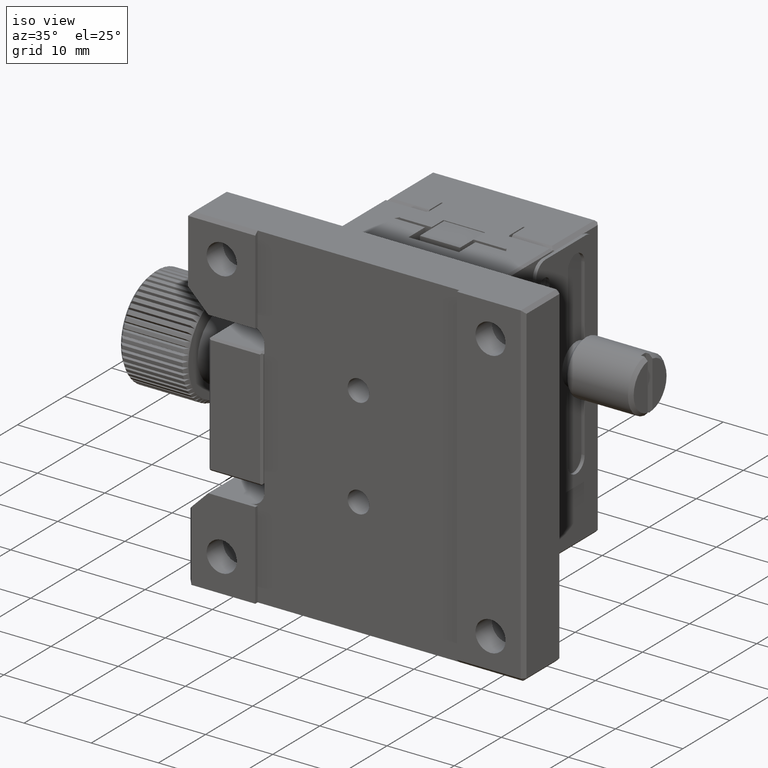
[diagram: clean part render]
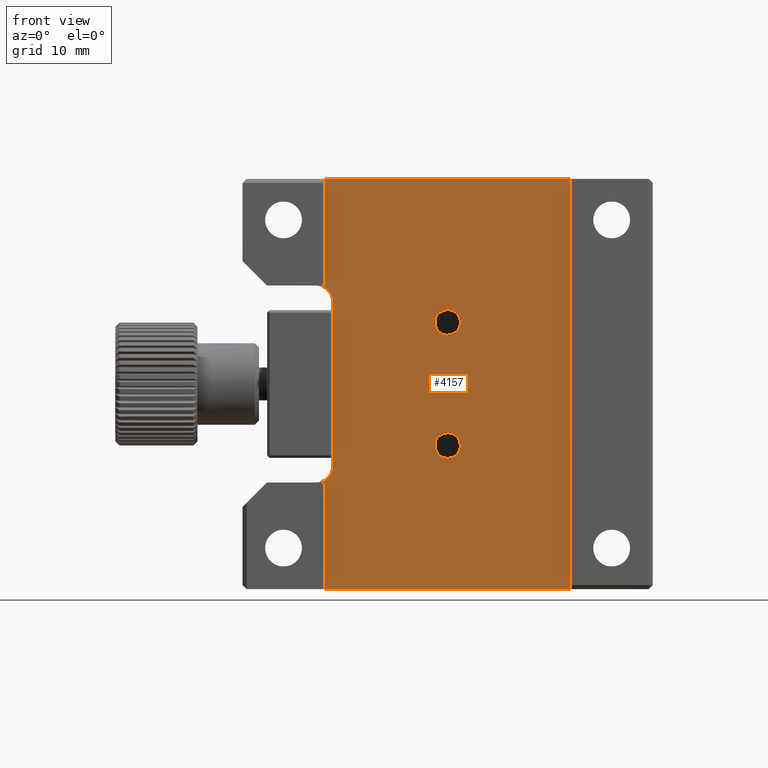
[diagram: tour spotlight — one face highlighted and labeled with its STEP entity id]
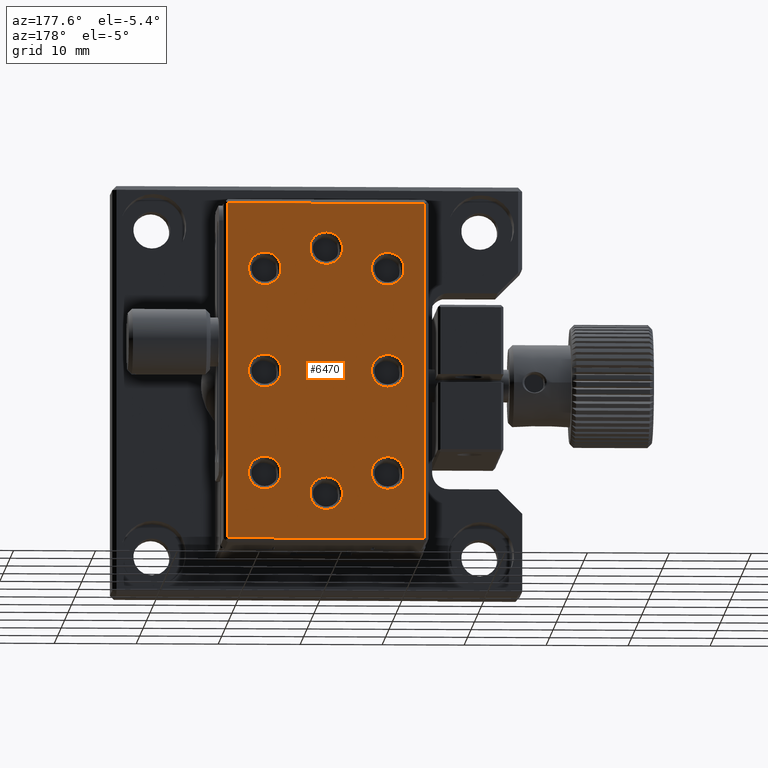
[diagram: tour spotlight — one face highlighted and labeled with its STEP entity id]
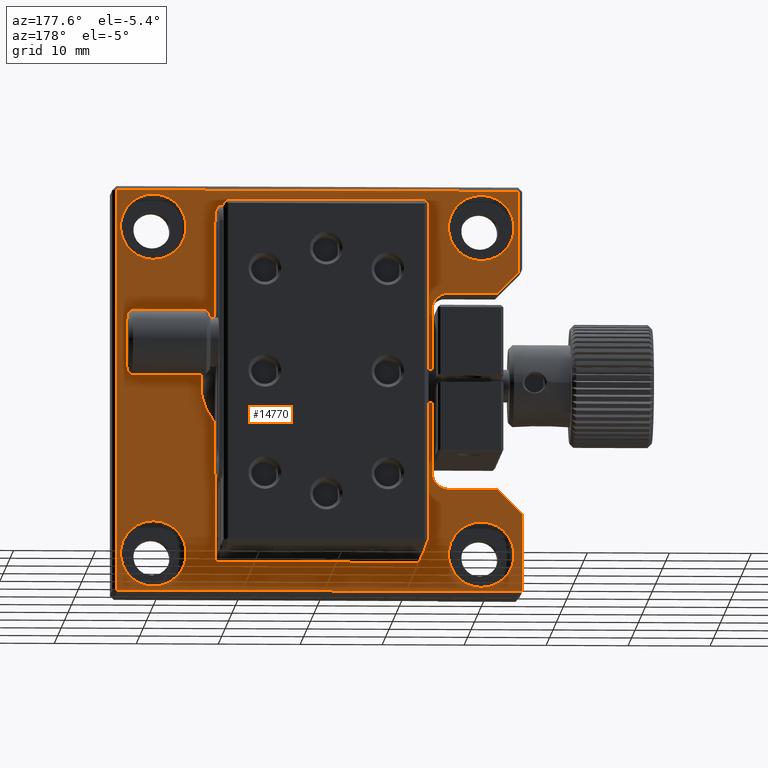
[diagram: tour spotlight — one face highlighted and labeled with its STEP entity id]
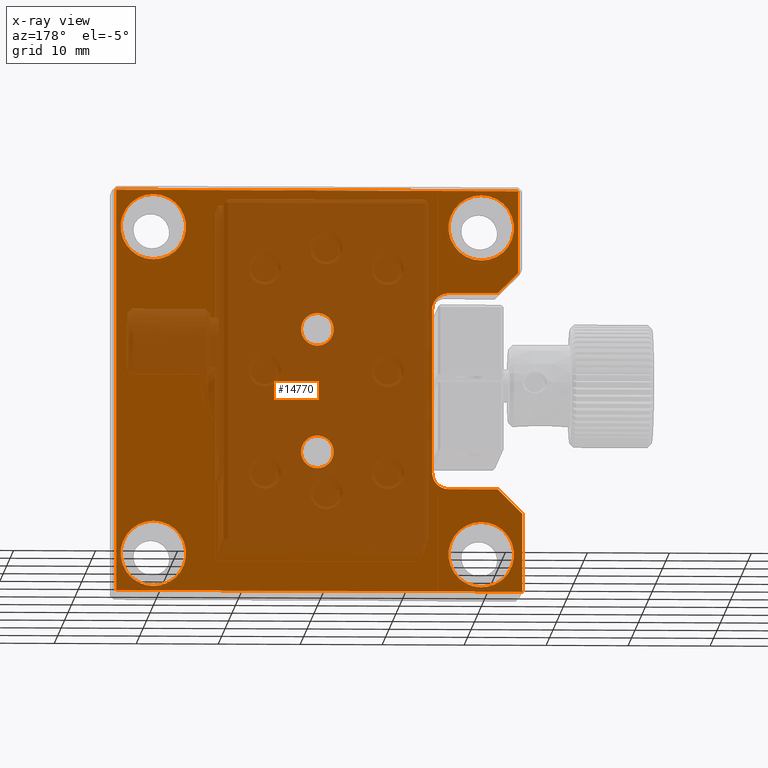
[diagram: x-ray of the same camera — body ghosted, this tour face saturated]
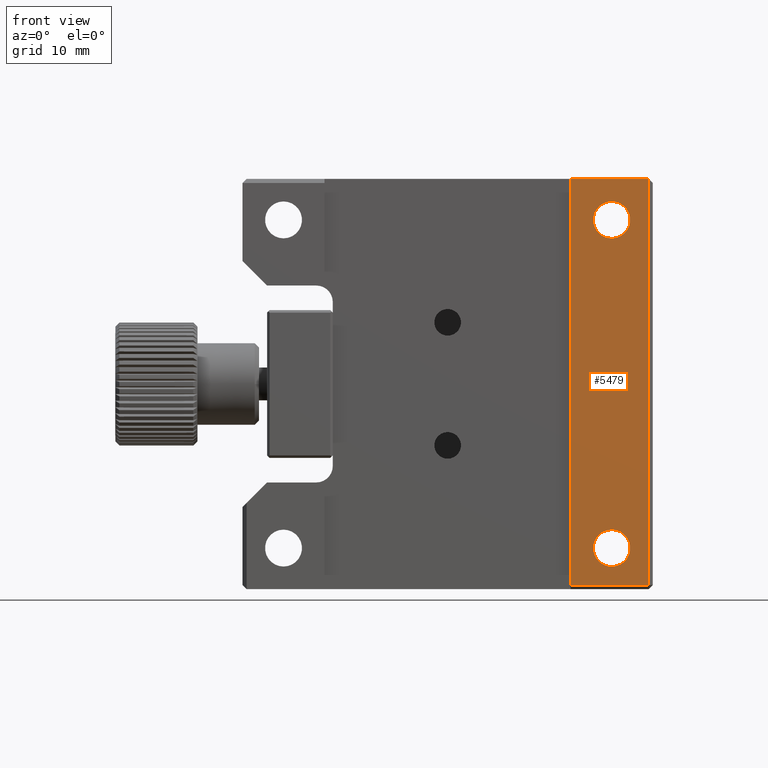
[diagram: tour spotlight — one face highlighted and labeled with its STEP entity id]
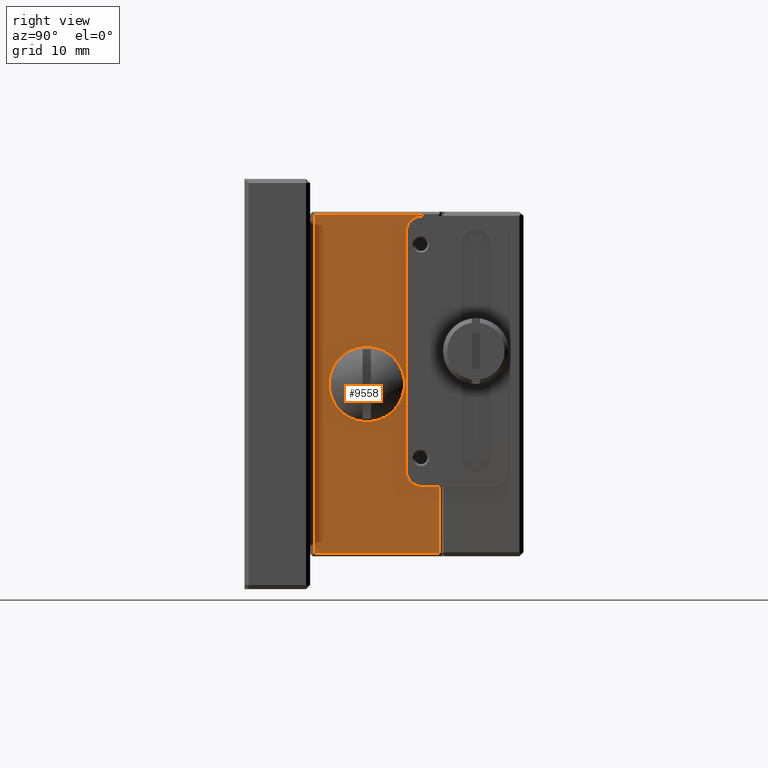
[diagram: tour spotlight — one face highlighted and labeled with its STEP entity id]
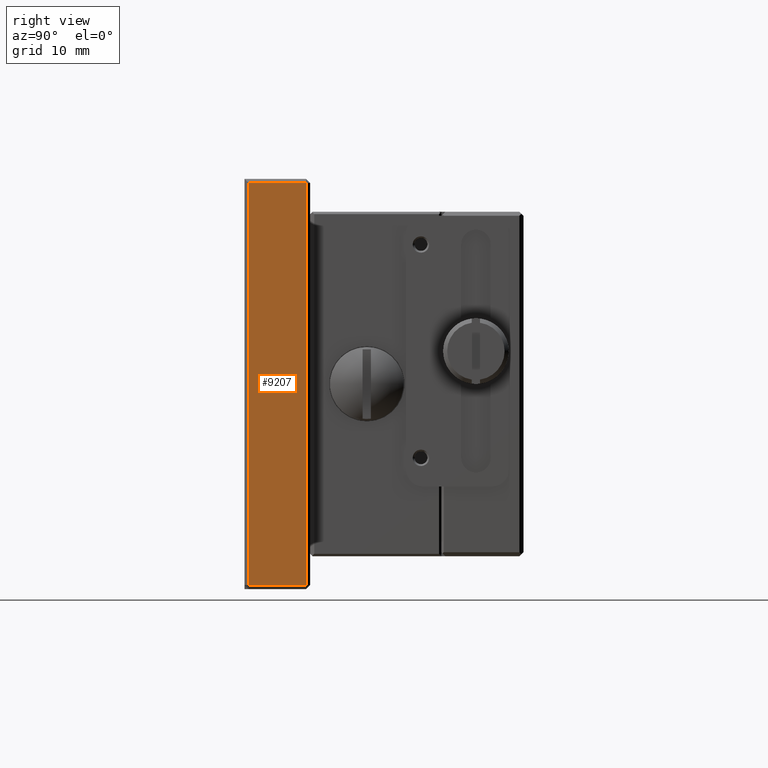
[diagram: tour spotlight — one face highlighted and labeled with its STEP entity id]
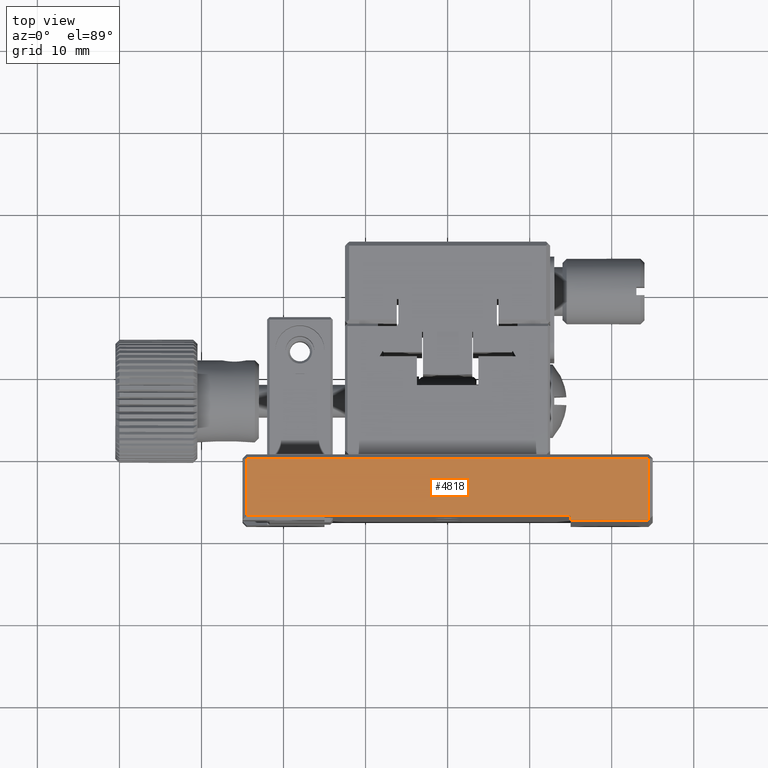
[diagram: tour spotlight — one face highlighted and labeled with its STEP entity id]
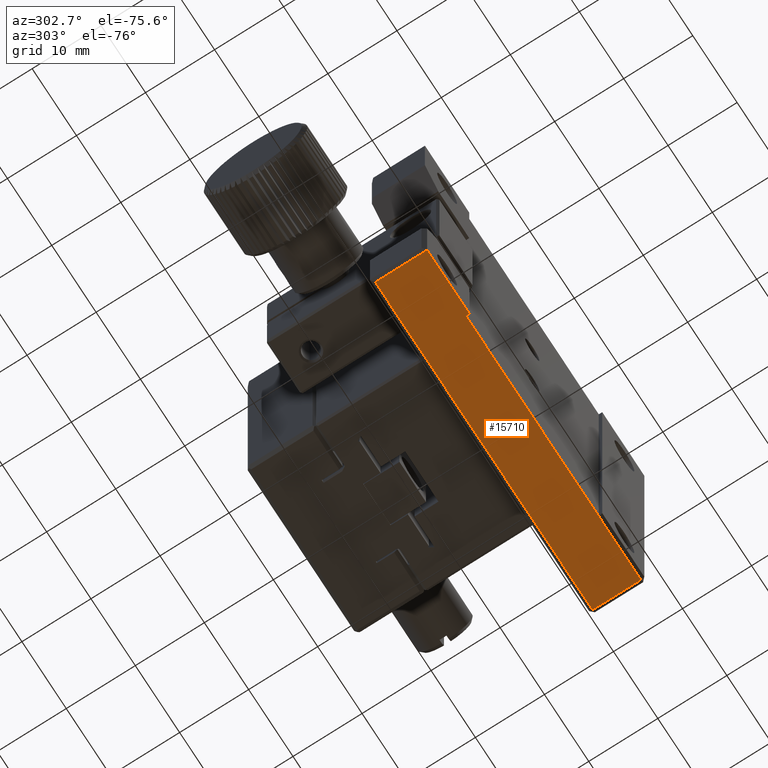
[diagram: tour spotlight — one face highlighted and labeled with its STEP entity id]
A machine part: a face-by-face anatomy tour. The part has 548 B-rep faces; the first image is the clean iso view, then the 8 largest visible faces are spotlighted one at a time (largest first), each with its STEP entity span.

Face 1 — front view, entity #4157. In plain terms, the highlighted planar face has unit normal (0, 1, 0).
Definition (entity closure, byte-faithful):
#140 = DIRECTION ( 'NONE',  ( 0.000000000000000000, 0.000000000000000000, 1.000000000000000000 ) ) ;
#191 = VECTOR ( 'NONE', #16162, 1000.000000000000000 ) ;
#290 = EDGE_CURVE ( 'NONE', #8453, #7497, #8781, .T. ) ;
#359 = FACE_BOUND ( 'NONE', #5386, .T. ) ;
#430 = DIRECTION ( 'NONE',  ( 0.000000000000000000, 0.000000000000000000, -1.000000000000000000 ) ) ;
#451 = CARTESIAN_POINT ( 'NONE',  ( -16.00000000000000000, -7.500000000000000000, 12.00000000000000000 ) ) ;
#830 = LINE ( 'NONE', #3051, #10056 ) ;
#1050 = EDGE_CURVE ( 'NONE', #11957, #7497, #12789, .T. ) ;
#1160 = DIRECTION ( 'NONE',  ( 0.000000000000000000, 0.000000000000000000, -1.000000000000000000 ) ) ;
#1238 = CARTESIAN_POINT ( 'NONE',  ( -16.00000000000000000, -7.500000000000000000, -10.00000000000000000 ) ) ;
#1705 = ORIENTED_EDGE ( 'NONE', *, *, #290, .F. ) ;
#1968 = VERTEX_POINT ( 'NONE', #6945 ) ;
#2044 = EDGE_LOOP ( 'NONE', ( #6878 ) ) ;
#2062 = VECTOR ( 'NONE', #7270, 1000.000000000000000 ) ;
#2191 = DIRECTION ( 'NONE',  ( 0.000000000000000000, -1.000000000000000000, 0.000000000000000000 ) ) ;
#2692 = CARTESIAN_POINT ( 'NONE',  ( -14.00000000000000000, -7.500000000000000000, 10.00000000000000000 ) ) ;
#2832 = ORIENTED_EDGE ( 'NONE', *, *, #12797, .F. ) ;
#2842 = CARTESIAN_POINT ( 'NONE',  ( -15.00000000000000000, -7.500000000000000000, -25.00000000000000355 ) ) ;
#2942 = CARTESIAN_POINT ( 'NONE',  ( -15.00000000000000000, -7.500000000000000000, -12.00000000000000000 ) ) ;
#3051 = CARTESIAN_POINT ( 'NONE',  ( -15.00000000000000000, -7.500000000000000000, 0.000000000000000000 ) ) ;
#3218 = EDGE_CURVE ( 'NONE', #15799, #10542, #6320, .T. ) ;
#3330 = ORIENTED_EDGE ( 'NONE', *, *, #4715, .F. ) ;
#3332 = VECTOR ( 'NONE', #12950, 1000.000000000000000 ) ;
#3504 = CARTESIAN_POINT ( 'NONE',  ( -15.00000000000000000, -7.500000000000000000, 0.000000000000000000 ) ) ;
#3657 = EDGE_CURVE ( 'NONE', #5795, #13072, #10237, .T. ) ;
#3756 = CARTESIAN_POINT ( 'NONE',  ( 0.000000000000000000, -7.500000000000000000, 5.878999999999999559 ) ) ;
#3780 = ORIENTED_EDGE ( 'NONE', *, *, #3657, .T. ) ;
#4030 = DIRECTION ( 'NONE',  ( -1.000000000000000000, -0.000000000000000000, 0.000000000000000000 ) ) ;
#4083 = ORIENTED_EDGE ( 'NONE', *, *, #1050, .T. ) ;
#4115 = DIRECTION ( 'NONE',  ( 0.000000000000000000, 1.000000000000000000, 0.000000000000000000 ) ) ;
#4133 = EDGE_CURVE ( 'NONE', #15799, #12975, #7538, .T. ) ;
#4157 = ADVANCED_FACE ( 'NONE', ( #14223, #11835, #359 ), #4283, .F. ) ;
#4187 = ORIENTED_EDGE ( 'NONE', *, *, #9613, .F. ) ;
#4283 = PLANE ( 'NONE',  #11217 ) ;
#4715 = EDGE_CURVE ( 'NONE', #10542, #13072, #14759, .T. ) ;
#4793 = CARTESIAN_POINT ( 'NONE',  ( -15.00000000000000000, -7.500000000000000000, 12.00000000000000178 ) ) ;
#4996 = CARTESIAN_POINT ( 'NONE',  ( 0.000000000000000000, -7.500000000000000000, 12.00000000000000000 ) ) ;
#5134 = CARTESIAN_POINT ( 'NONE',  ( -25.00000000000000000, -7.500000000000000000, 25.00000000000000000 ) ) ;
#5235 = AXIS2_PLACEMENT_3D ( 'NONE', #6717, #11746, #5589 ) ;
#5386 = EDGE_LOOP ( 'NONE', ( #2832 ) ) ;
#5423 = VECTOR ( 'NONE', #140, 1000.000000000000000 ) ;
#5589 = DIRECTION ( 'NONE',  ( 0.000000000000000000, 0.000000000000000000, -1.000000000000000000 ) ) ;
#5721 = AXIS2_PLACEMENT_3D ( 'NONE', #8037, #14057, #430 ) ;
#5795 = VERTEX_POINT ( 'NONE', #7418 ) ;
#6320 = LINE ( 'NONE', #4996, #191 ) ;
#6504 = DIRECTION ( 'NONE',  ( 0.000000000000000000, -0.000000000000000000, 1.000000000000000000 ) ) ;
#6566 = CARTESIAN_POINT ( 'NONE',  ( -14.00000000000000000, -7.500000000000000000, -10.00000000000000000 ) ) ;
#6576 = CARTESIAN_POINT ( 'NONE',  ( 0.000000000000000000, -7.500000000000000000, -25.00000000000000000 ) ) ;
#6717 = CARTESIAN_POINT ( 'NONE',  ( 0.000000000000000000, -7.500000000000000000, -7.500000000000000000 ) ) ;
#6789 = CIRCLE ( 'NONE', #5235, 1.621000000000000885 ) ;
#6878 = ORIENTED_EDGE ( 'NONE', *, *, #12270, .F. ) ;
#6945 = CARTESIAN_POINT ( 'NONE',  ( 0.000000000000000000, -7.500000000000000000, -9.121000000000000441 ) ) ;
#7270 = DIRECTION ( 'NONE',  ( 0.000000000000000000, -0.000000000000000000, 1.000000000000000000 ) ) ;
#7418 = CARTESIAN_POINT ( 'NONE',  ( 15.00000000000000000, -7.500000000000000000, 25.00000000000000355 ) ) ;
#7497 = VERTEX_POINT ( 'NONE', #11309 ) ;
#7537 = EDGE_LOOP ( 'NONE', ( #4187, #4083, #1705, #14109, #8546, #15288, #3780, #3330, #14164, #14997 ) ) ;
#7538 = CIRCLE ( 'NONE', #5721, 2.000000000000000000 ) ;
#7803 = CARTESIAN_POINT ( 'NONE',  ( 0.000000000000000000, -7.500000000000000000, 0.000000000000000000 ) ) ;
#7858 = CARTESIAN_POINT ( 'NONE',  ( -15.00000000000000000, -7.500000000000000000, -12.00000000000000178 ) ) ;
#7991 = EDGE_CURVE ( 'NONE', #10661, #10819, #10271, .T. ) ;
#8035 = DIRECTION ( 'NONE',  ( 0.000000000000000000, -0.000000000000000000, 1.000000000000000000 ) ) ;
#8037 = CARTESIAN_POINT ( 'NONE',  ( -16.00000000000000000, -7.500000000000000000, 10.00000000000000000 ) ) ;
#8195 = CARTESIAN_POINT ( 'NONE',  ( 15.00000000000000000, -7.500000000000000000, 0.000000000000000000 ) ) ;
#8453 = VERTEX_POINT ( 'NONE', #7858 ) ;
#8546 = ORIENTED_EDGE ( 'NONE', *, *, #7991, .F. ) ;
#8781 = LINE ( 'NONE', #2942, #3332 ) ;
#9005 = VECTOR ( 'NONE', #11834, 1000.000000000000000 ) ;
#9234 = CARTESIAN_POINT ( 'NONE',  ( -15.00000000000000000, -7.500000000000000000, 25.00000000000000000 ) ) ;
#9613 = EDGE_CURVE ( 'NONE', #11957, #12975, #11202, .T. ) ;
#9730 = DIRECTION ( 'NONE',  ( 0.000000000000000000, 0.000000000000000000, -1.000000000000000000 ) ) ;
#9892 = VECTOR ( 'NONE', #4030, 1000.000000000000000 ) ;
#10056 = VECTOR ( 'NONE', #8035, 1000.000000000000000 ) ;
#10149 = VERTEX_POINT ( 'NONE', #3756 ) ;
#10237 = LINE ( 'NONE', #5134, #14099 ) ;
#10271 = LINE ( 'NONE', #6576, #9892 ) ;
#10542 = VERTEX_POINT ( 'NONE', #4793 ) ;
#10661 = VERTEX_POINT ( 'NONE', #11379 ) ;
#10806 = CARTESIAN_POINT ( 'NONE',  ( 0.000000000000000000, -7.500000000000000000, 7.500000000000000000 ) ) ;
#10819 = VERTEX_POINT ( 'NONE', #2842 ) ;
#11202 = LINE ( 'NONE', #12523, #5423 ) ;
#11217 = AXIS2_PLACEMENT_3D ( 'NONE', #7803, #4115, #6504 ) ;
#11309 = CARTESIAN_POINT ( 'NONE',  ( -16.00000000000000000, -7.500000000000000000, -12.00000000000000000 ) ) ;
#11379 = CARTESIAN_POINT ( 'NONE',  ( 15.00000000000000000, -7.499999999999999112, -25.00000000000000000 ) ) ;
#11746 = DIRECTION ( 'NONE',  ( 0.000000000000000000, -1.000000000000000000, 0.000000000000000000 ) ) ;
#11834 = DIRECTION ( 'NONE',  ( -0.000000000000000000, 0.000000000000000000, -1.000000000000000000 ) ) ;
#11835 = FACE_BOUND ( 'NONE', #2044, .T. ) ;
#11957 = VERTEX_POINT ( 'NONE', #6566 ) ;
#12270 = EDGE_CURVE ( 'NONE', #1968, #1968, #6789, .T. ) ;
#12523 = CARTESIAN_POINT ( 'NONE',  ( -14.00000000000000000, -7.500000000000000000, 10.00000000000000000 ) ) ;
#12789 = CIRCLE ( 'NONE', #14106, 2.000000000000000000 ) ;
#12797 = EDGE_CURVE ( 'NONE', #10149, #10149, #12848, .T. ) ;
#12848 = CIRCLE ( 'NONE', #13358, 1.620999999999999996 ) ;
#12950 = DIRECTION ( 'NONE',  ( -1.000000000000000000, -0.000000000000000000, 0.000000000000000000 ) ) ;
#12975 = VERTEX_POINT ( 'NONE', #2692 ) ;
#13072 = VERTEX_POINT ( 'NONE', #9234 ) ;
#13358 = AXIS2_PLACEMENT_3D ( 'NONE', #10806, #2191, #9730 ) ;
#13489 = EDGE_CURVE ( 'NONE', #5795, #10661, #15611, .T. ) ;
#13495 = EDGE_CURVE ( 'NONE', #10819, #8453, #830, .T. ) ;
#14057 = DIRECTION ( 'NONE',  ( -0.000000000000000000, 1.000000000000000000, -0.000000000000000000 ) ) ;
#14099 = VECTOR ( 'NONE', #15255, 1000.000000000000000 ) ;
#14106 = AXIS2_PLACEMENT_3D ( 'NONE', #1238, #14865, #1160 ) ;
#14109 = ORIENTED_EDGE ( 'NONE', *, *, #13495, .F. ) ;
#14164 = ORIENTED_EDGE ( 'NONE', *, *, #3218, .F. ) ;
#14223 = FACE_OUTER_BOUND ( 'NONE', #7537, .T. ) ;
#14759 = LINE ( 'NONE', #3504, #2062 ) ;
#14865 = DIRECTION ( 'NONE',  ( -0.000000000000000000, 1.000000000000000000, -0.000000000000000000 ) ) ;
#14997 = ORIENTED_EDGE ( 'NONE', *, *, #4133, .T. ) ;
#15255 = DIRECTION ( 'NONE',  ( -1.000000000000000000, 0.000000000000000000, -0.000000000000000000 ) ) ;
#15288 = ORIENTED_EDGE ( 'NONE', *, *, #13489, .F. ) ;
#15611 = LINE ( 'NONE', #8195, #9005 ) ;
#15799 = VERTEX_POINT ( 'NONE', #451 ) ;
#16162 = DIRECTION ( 'NONE',  ( 1.000000000000000000, 0.000000000000000000, -0.000000000000000000 ) ) ;

Face 2 — auxiliary view, entity #6470. In plain terms, the highlighted planar face has unit normal (-0, -1, 0).
Definition (entity closure, byte-faithful):
#327 = ORIENTED_EDGE ( 'NONE', *, *, #3856, .F. ) ;
#394 = DIRECTION ( 'NONE',  ( -0.000000000000000000, 1.000000000000000000, 0.000000000000000000 ) ) ;
#477 = CARTESIAN_POINT ( 'NONE',  ( 0.000000000000000000, 26.00000000000000355, -15.00000000000000000 ) ) ;
#616 = EDGE_CURVE ( 'NONE', #4362, #4362, #10163, .T. ) ;
#621 = ORIENTED_EDGE ( 'NONE', *, *, #11597, .F. ) ;
#818 = VERTEX_POINT ( 'NONE', #13828 ) ;
#996 = CARTESIAN_POINT ( 'NONE',  ( 0.000000000000000000, 26.00000000000000355, -12.99999999991996447 ) ) ;
#1097 = ORIENTED_EDGE ( 'NONE', *, *, #616, .F. ) ;
#1294 = AXIS2_PLACEMENT_3D ( 'NONE', #7943, #3038, #2886 ) ;
#1535 = DIRECTION ( 'NONE',  ( 0.000000000000000000, 0.000000000000000000, 1.000000000000000000 ) ) ;
#1543 = CARTESIAN_POINT ( 'NONE',  ( 12.00000000000000000, 25.99999999999998934, 20.50000000000000000 ) ) ;
#1566 = DIRECTION ( 'NONE',  ( -0.000000000000000000, 1.000000000000000000, 0.000000000000000000 ) ) ;
#1806 = VECTOR ( 'NONE', #14469, 1000.000000000000000 ) ;
#2077 = FACE_BOUND ( 'NONE', #14521, .T. ) ;
#2801 = DIRECTION ( 'NONE',  ( -0.000000000000000000, 1.000000000000000000, 0.000000000000000000 ) ) ;
#2886 = DIRECTION ( 'NONE',  ( 0.000000000000000000, 0.000000000000000000, 1.000000000000000000 ) ) ;
#3038 = DIRECTION ( 'NONE',  ( -0.000000000000000000, 1.000000000000000000, 0.000000000000000000 ) ) ;
#3096 = AXIS2_PLACEMENT_3D ( 'NONE', #5310, #394, #11313 ) ;
#3124 = VERTEX_POINT ( 'NONE', #9336 ) ;
#3222 = CARTESIAN_POINT ( 'NONE',  ( -12.00000000000000711, 26.00000000000001066, -20.50000000000000711 ) ) ;
#3281 = EDGE_CURVE ( 'NONE', #15925, #15925, #14858, .T. ) ;
#3350 = VERTEX_POINT ( 'NONE', #14453 ) ;
#3375 = CARTESIAN_POINT ( 'NONE',  ( -7.500000000000009770, 26.00000000000000355, -10.49999999992223820 ) ) ;
#3376 = CIRCLE ( 'NONE', #11242, 1.999999999995907718 ) ;
#3414 = CARTESIAN_POINT ( 'NONE',  ( -12.00000000000000000, 26.00000000000001776, 21.00000000000000000 ) ) ;
#3701 = CARTESIAN_POINT ( 'NONE',  ( -7.500000000000009770, 25.99999999994316013, 14.49999999999818101 ) ) ;
#3739 = EDGE_CURVE ( 'NONE', #12075, #12075, #12798, .T. ) ;
#3744 = EDGE_CURVE ( 'NONE', #7166, #818, #5387, .T. ) ;
#3856 = EDGE_CURVE ( 'NONE', #10830, #10830, #6989, .T. ) ;
#3880 = AXIS2_PLACEMENT_3D ( 'NONE', #15936, #9596, #12404 ) ;
#3887 = AXIS2_PLACEMENT_3D ( 'NONE', #13108, #5545, #1535 ) ;
#3991 = ORIENTED_EDGE ( 'NONE', *, *, #15489, .F. ) ;
#4022 = CARTESIAN_POINT ( 'NONE',  ( 0.000000000000000000, 26.00000000000000355, 15.00000000000000000 ) ) ;
#4130 = VECTOR ( 'NONE', #10311, 1000.000000000000000 ) ;
#4172 = CIRCLE ( 'NONE', #1294, 2.000000000009549694 ) ;
#4362 = VERTEX_POINT ( 'NONE', #3375 ) ;
#4594 = FACE_BOUND ( 'NONE', #8319, .T. ) ;
#4767 = ORIENTED_EDGE ( 'NONE', *, *, #5449, .F. ) ;
#4839 = CARTESIAN_POINT ( 'NONE',  ( -7.500000000000009770, 25.99999999994316013, 12.50000000000000000 ) ) ;
#5310 = CARTESIAN_POINT ( 'NONE',  ( 7.499999999999990230, 26.00000000000000355, -12.50000000000000000 ) ) ;
#5387 = LINE ( 'NONE', #1543, #4130 ) ;
#5406 = LINE ( 'NONE', #11729, #5469 ) ;
#5449 = EDGE_CURVE ( 'NONE', #16090, #16090, #13110, .T. ) ;
#5469 = VECTOR ( 'NONE', #6630, 1000.000000000000000 ) ;
#5506 = DIRECTION ( 'NONE',  ( 0.000000000000000000, 0.000000000000000000, 1.000000000000000000 ) ) ;
#5545 = DIRECTION ( 'NONE',  ( -0.000000000000000000, 1.000000000000000000, 0.000000000000000000 ) ) ;
#5672 = LINE ( 'NONE', #10764, #1806 ) ;
#5728 = ORIENTED_EDGE ( 'NONE', *, *, #3281, .F. ) ;
#6080 = FACE_BOUND ( 'NONE', #12346, .T. ) ;
#6111 = EDGE_LOOP ( 'NONE', ( #5728 ) ) ;
#6358 = VERTEX_POINT ( 'NONE', #3222 ) ;
#6470 = ADVANCED_FACE ( 'NONE', ( #8446, #9845, #14795, #6080, #11085, #9765, #12151, #4594, #2077 ), #16021, .F. ) ;
#6505 = ORIENTED_EDGE ( 'NONE', *, *, #11625, .F. ) ;
#6630 = DIRECTION ( 'NONE',  ( 0.000000000000000000, 0.000000000000000000, 1.000000000000000000 ) ) ;
#6874 = CARTESIAN_POINT ( 'NONE',  ( 7.499999999999990230, 26.00000000000000355, 2.000000000009549694 ) ) ;
#6989 = CIRCLE ( 'NONE', #9099, 2.000000000080035090 ) ;
#7166 = VERTEX_POINT ( 'NONE', #8172 ) ;
#7229 = AXIS2_PLACEMENT_3D ( 'NONE', #9178, #9326, #14196 ) ;
#7237 = EDGE_CURVE ( 'NONE', #3124, #3124, #15651, .T. ) ;
#7384 = DIRECTION ( 'NONE',  ( 0.000000000000000000, 0.000000000000000000, 1.000000000000000000 ) ) ;
#7931 = DIRECTION ( 'NONE',  ( 0.000000000000000000, 0.000000000000000000, 1.000000000000000000 ) ) ;
#7943 = CARTESIAN_POINT ( 'NONE',  ( 7.499999999999990230, 26.00000000000000355, 0.000000000000000000 ) ) ;
#8172 = CARTESIAN_POINT ( 'NONE',  ( 12.00000000000000000, 25.99999999999998934, 20.50000000000000000 ) ) ;
#8272 = CARTESIAN_POINT ( 'NONE',  ( -7.500000000000009770, 26.00000000000000355, 2.000000000009549694 ) ) ;
#8319 = EDGE_LOOP ( 'NONE', ( #621 ) ) ;
#8398 = DIRECTION ( 'NONE',  ( -0.000000000000000000, -0.000000000000000000, -1.000000000000000000 ) ) ;
#8437 = CARTESIAN_POINT ( 'NONE',  ( 7.499999999999990230, 26.00000000000000355, -10.49999999992223820 ) ) ;
#8446 = FACE_OUTER_BOUND ( 'NONE', #10956, .T. ) ;
#8832 = CARTESIAN_POINT ( 'NONE',  ( 12.00000000000000000, 25.99999999999998934, -20.50000000000000000 ) ) ;
#8945 = EDGE_CURVE ( 'NONE', #9225, #7166, #5406, .T. ) ;
#9099 = AXIS2_PLACEMENT_3D ( 'NONE', #477, #13019, #15803 ) ;
#9178 = CARTESIAN_POINT ( 'NONE',  ( 7.500000000000000000, 25.99999999994316013, 12.50000000000000000 ) ) ;
#9225 = VERTEX_POINT ( 'NONE', #8832 ) ;
#9326 = DIRECTION ( 'NONE',  ( 0.000000000000000000, 1.000000000000000000, 0.000000000000000000 ) ) ;
#9336 = CARTESIAN_POINT ( 'NONE',  ( 7.500000000000000000, 25.99999999994316013, 14.49999999999818101 ) ) ;
#9596 = DIRECTION ( 'NONE',  ( -1.184237892933500047E-15, -1.000000000000000000, 0.000000000000000000 ) ) ;
#9761 = ORIENTED_EDGE ( 'NONE', *, *, #11214, .F. ) ;
#9765 = FACE_BOUND ( 'NONE', #12395, .T. ) ;
#9845 = FACE_BOUND ( 'NONE', #12781, .T. ) ;
#10017 = ORIENTED_EDGE ( 'NONE', *, *, #3739, .F. ) ;
#10163 = CIRCLE ( 'NONE', #3887, 2.000000000077762685 ) ;
#10311 = DIRECTION ( 'NONE',  ( -1.000000000000000000, 1.184237892933500047E-15, -0.000000000000000000 ) ) ;
#10596 = EDGE_LOOP ( 'NONE', ( #1097 ) ) ;
#10764 = CARTESIAN_POINT ( 'NONE',  ( 12.00000000000000000, 25.99999999999998934, -20.50000000000000000 ) ) ;
#10830 = VERTEX_POINT ( 'NONE', #996 ) ;
#10956 = EDGE_LOOP ( 'NONE', ( #15624, #12664, #9761, #3991 ) ) ;
#11085 = FACE_BOUND ( 'NONE', #6111, .T. ) ;
#11214 = EDGE_CURVE ( 'NONE', #6358, #9225, #5672, .T. ) ;
#11242 = AXIS2_PLACEMENT_3D ( 'NONE', #4022, #2801, #5506 ) ;
#11313 = DIRECTION ( 'NONE',  ( 0.000000000000000000, 0.000000000000000000, 1.000000000000000000 ) ) ;
#11597 = EDGE_CURVE ( 'NONE', #3350, #3350, #3376, .T. ) ;
#11625 = EDGE_CURVE ( 'NONE', #13371, #13371, #4172, .T. ) ;
#11729 = CARTESIAN_POINT ( 'NONE',  ( 12.00000000000000000, 25.99999999999998934, 21.00000000000000000 ) ) ;
#11971 = AXIS2_PLACEMENT_3D ( 'NONE', #12957, #1566, #7931 ) ;
#12075 = VERTEX_POINT ( 'NONE', #8437 ) ;
#12151 = FACE_BOUND ( 'NONE', #14861, .T. ) ;
#12346 = EDGE_LOOP ( 'NONE', ( #10017 ) ) ;
#12395 = EDGE_LOOP ( 'NONE', ( #6505 ) ) ;
#12403 = DIRECTION ( 'NONE',  ( 0.000000000000000000, 1.000000000000000000, 0.000000000000000000 ) ) ;
#12404 = DIRECTION ( 'NONE',  ( 1.000000000000000000, -1.184237892933500047E-15, 0.000000000000000000 ) ) ;
#12664 = ORIENTED_EDGE ( 'NONE', *, *, #8945, .F. ) ;
#12781 = EDGE_LOOP ( 'NONE', ( #13867 ) ) ;
#12798 = CIRCLE ( 'NONE', #3096, 2.000000000077762685 ) ;
#12947 = VECTOR ( 'NONE', #8398, 1000.000000000000000 ) ;
#12957 = CARTESIAN_POINT ( 'NONE',  ( -7.500000000000009770, 26.00000000000000355, 0.000000000000000000 ) ) ;
#13019 = DIRECTION ( 'NONE',  ( -0.000000000000000000, 1.000000000000000000, 0.000000000000000000 ) ) ;
#13108 = CARTESIAN_POINT ( 'NONE',  ( -7.500000000000009770, 26.00000000000000355, -12.50000000000000000 ) ) ;
#13110 = CIRCLE ( 'NONE', #14380, 1.999999999998180344 ) ;
#13371 = VERTEX_POINT ( 'NONE', #6874 ) ;
#13828 = CARTESIAN_POINT ( 'NONE',  ( -12.00000000000000711, 26.00000000000001066, 20.50000000000000711 ) ) ;
#13867 = ORIENTED_EDGE ( 'NONE', *, *, #7237, .F. ) ;
#14196 = DIRECTION ( 'NONE',  ( 0.000000000000000000, 0.000000000000000000, 1.000000000000000000 ) ) ;
#14380 = AXIS2_PLACEMENT_3D ( 'NONE', #4839, #12403, #7384 ) ;
#14453 = CARTESIAN_POINT ( 'NONE',  ( 0.000000000000000000, 26.00000000000000355, 16.99999999999590727 ) ) ;
#14469 = DIRECTION ( 'NONE',  ( 1.000000000000000000, -1.184237892933500047E-15, 0.000000000000000000 ) ) ;
#14521 = EDGE_LOOP ( 'NONE', ( #327 ) ) ;
#14666 = LINE ( 'NONE', #3414, #12947 ) ;
#14795 = FACE_BOUND ( 'NONE', #10596, .T. ) ;
#14858 = CIRCLE ( 'NONE', #11971, 2.000000000009549694 ) ;
#14861 = EDGE_LOOP ( 'NONE', ( #4767 ) ) ;
#15489 = EDGE_CURVE ( 'NONE', #818, #6358, #14666, .T. ) ;
#15624 = ORIENTED_EDGE ( 'NONE', *, *, #3744, .F. ) ;
#15651 = CIRCLE ( 'NONE', #7229, 1.999999999998180344 ) ;
#15803 = DIRECTION ( 'NONE',  ( 0.000000000000000000, 0.000000000000000000, 1.000000000000000000 ) ) ;
#15925 = VERTEX_POINT ( 'NONE', #8272 ) ;
#15936 = CARTESIAN_POINT ( 'NONE',  ( 12.00000000000000000, 25.99999999999998934, 21.00000000000000000 ) ) ;
#16021 = PLANE ( 'NONE',  #3880 ) ;
#16090 = VERTEX_POINT ( 'NONE', #3701 ) ;

Face 3 — auxiliary view, entity #14770. An x-ray twin of the same camera follows (body ghosted, this face saturated) — the face is partly hidden behind the body. In plain terms, the highlighted planar face has unit normal (0, 1, 0).
Definition (entity closure, byte-faithful):
#39 = EDGE_CURVE ( 'NONE', #6726, #6726, #13410, .T. ) ;
#200 = CIRCLE ( 'NONE', #6471, 2.000000000000000000 ) ;
#234 = CIRCLE ( 'NONE', #14377, 2.000000000016370461 ) ;
#307 = LINE ( 'NONE', #10295, #4569 ) ;
#340 = VERTEX_POINT ( 'NONE', #9096 ) ;
#606 = DIRECTION ( 'NONE',  ( 0.000000000000000000, -0.000000000000000000, 1.000000000000000000 ) ) ;
#650 = VERTEX_POINT ( 'NONE', #8302 ) ;
#654 = AXIS2_PLACEMENT_3D ( 'NONE', #7900, #6831, #2837 ) ;
#691 = FACE_BOUND ( 'NONE', #9433, .T. ) ;
#793 = ORIENTED_EDGE ( 'NONE', *, *, #9419, .T. ) ;
#883 = CARTESIAN_POINT ( 'NONE',  ( -14.00000000000000000, 0.000000000000000000, -10.00000000000000000 ) ) ;
#887 = VERTEX_POINT ( 'NONE', #9570 ) ;
#974 = VERTEX_POINT ( 'NONE', #1512 ) ;
#1023 = DIRECTION ( 'NONE',  ( 0.000000000000000000, -0.000000000000000000, 1.000000000000000000 ) ) ;
#1104 = DIRECTION ( 'NONE',  ( -1.000000000000000000, -0.000000000000000000, 0.000000000000000000 ) ) ;
#1108 = VERTEX_POINT ( 'NONE', #2717 ) ;
#1115 = CARTESIAN_POINT ( 'NONE',  ( 0.000000000000000000, 0.000000000000000000, -24.50000000000000000 ) ) ;
#1226 = DIRECTION ( 'NONE',  ( 0.000000000000000000, 0.000000000000000000, -1.000000000000000000 ) ) ;
#1301 = VECTOR ( 'NONE', #12267, 1000.000000000000000 ) ;
#1401 = ORIENTED_EDGE ( 'NONE', *, *, #8753, .T. ) ;
#1512 = CARTESIAN_POINT ( 'NONE',  ( 24.50000000000000000, 0.000000000000000000, 24.50000000000000000 ) ) ;
#1656 = LINE ( 'NONE', #14052, #14137 ) ;
#1844 = CARTESIAN_POINT ( 'NONE',  ( -24.50000000000000000, 0.000000000000000000, 0.000000000000000000 ) ) ;
#1868 = EDGE_CURVE ( 'NONE', #974, #8456, #11982, .T. ) ;
#1978 = DIRECTION ( 'NONE',  ( -0.000000000000000000, 0.000000000000000000, -1.000000000000000000 ) ) ;
#2221 = EDGE_CURVE ( 'NONE', #1108, #974, #12181, .T. ) ;
#2247 = CARTESIAN_POINT ( 'NONE',  ( 0.000000000000000000, 0.000000000000000000, 12.00000000000000000 ) ) ;
#2260 = LINE ( 'NONE', #1115, #14619 ) ;
#2289 = EDGE_LOOP ( 'NONE', ( #7683 ) ) ;
#2442 = DIRECTION ( 'NONE',  ( 0.000000000000000000, -1.000000000000000000, 0.000000000000000000 ) ) ;
#2567 = CARTESIAN_POINT ( 'NONE',  ( -25.00000000000000355, 0.000000000000000000, -15.00000000000000000 ) ) ;
#2697 = DIRECTION ( 'NONE',  ( -0.000000000000000000, -1.000000000000000000, -0.000000000000000000 ) ) ;
#2717 = CARTESIAN_POINT ( 'NONE',  ( -24.50000000000000711, -3.469446951953614189E-15, 24.50000000000000711 ) ) ;
#2742 = CIRCLE ( 'NONE', #5091, 4.000000000000000000 ) ;
#2800 = VERTEX_POINT ( 'NONE', #2567 ) ;
#2837 = DIRECTION ( 'NONE',  ( 0.000000000000000000, -0.000000000000000000, 1.000000000000000000 ) ) ;
#3058 = CARTESIAN_POINT ( 'NONE',  ( -20.00000000000000000, 0.000000000000000000, 20.00000000000000000 ) ) ;
#3209 = CARTESIAN_POINT ( 'NONE',  ( 24.50000000000000000, 0.000000000000000000, 0.000000000000000000 ) ) ;
#3399 = CARTESIAN_POINT ( 'NONE',  ( -22.00000000000000000, 0.000000000000000000, 12.00000000000000000 ) ) ;
#3457 = CARTESIAN_POINT ( 'NONE',  ( -16.00000000000000000, 0.000000000000000000, -12.00000000000000000 ) ) ;
#3522 = CIRCLE ( 'NONE', #7978, 2.000000000002728928 ) ;
#3845 = DIRECTION ( 'NONE',  ( 0.000000000000000000, -1.000000000000000000, 0.000000000000000000 ) ) ;
#3931 = CARTESIAN_POINT ( 'NONE',  ( -20.00000000000000000, 0.000000000000000000, -20.00000000000000000 ) ) ;
#4095 = VERTEX_POINT ( 'NONE', #11822 ) ;
#4143 = PLANE ( 'NONE',  #654 ) ;
#4192 = ORIENTED_EDGE ( 'NONE', *, *, #4961, .T. ) ;
#4569 = VECTOR ( 'NONE', #14989, 1000.000000000000000 ) ;
#4571 = VERTEX_POINT ( 'NONE', #883 ) ;
#4624 = VECTOR ( 'NONE', #606, 1000.000000000000000 ) ;
#4710 = CARTESIAN_POINT ( 'NONE',  ( -25.00000000000000000, 0.000000000000000000, 0.000000000000000000 ) ) ;
#4810 = CARTESIAN_POINT ( 'NONE',  ( 20.00000000000000000, 0.000000000000000000, -16.00000000000000000 ) ) ;
#4879 = EDGE_CURVE ( 'NONE', #11402, #2800, #5930, .T. ) ;
#4961 = EDGE_CURVE ( 'NONE', #14950, #14829, #8644, .T. ) ;
#4982 = VERTEX_POINT ( 'NONE', #4810 ) ;
#5035 = EDGE_CURVE ( 'NONE', #14829, #650, #14649, .T. ) ;
#5068 = CARTESIAN_POINT ( 'NONE',  ( -16.00000000000000000, 0.000000000000000000, 10.00000000000000000 ) ) ;
#5091 = AXIS2_PLACEMENT_3D ( 'NONE', #5964, #5882, #13691 ) ;
#5130 = ORIENTED_EDGE ( 'NONE', *, *, #1868, .T. ) ;
#5192 = ORIENTED_EDGE ( 'NONE', *, *, #39, .T. ) ;
#5227 = EDGE_LOOP ( 'NONE', ( #5192 ) ) ;
#5453 = CARTESIAN_POINT ( 'NONE',  ( 0.000000000000000000, -7.548822678060673752E-11, 7.500000000000000000 ) ) ;
#5460 = DIRECTION ( 'NONE',  ( 0.000000000000000000, 0.000000000000000000, 1.000000000000000000 ) ) ;
#5470 = EDGE_LOOP ( 'NONE', ( #1401 ) ) ;
#5486 = VECTOR ( 'NONE', #1104, 1000.000000000000000 ) ;
#5686 = FACE_BOUND ( 'NONE', #14805, .T. ) ;
#5776 = LINE ( 'NONE', #12014, #8739 ) ;
#5802 = DIRECTION ( 'NONE',  ( -0.000000000000000000, -1.000000000000000000, -0.000000000000000000 ) ) ;
#5857 = CARTESIAN_POINT ( 'NONE',  ( 0.000000000000000000, 0.000000000000000000, 24.50000000000000000 ) ) ;
#5882 = DIRECTION ( 'NONE',  ( -0.000000000000000000, -1.000000000000000000, -0.000000000000000000 ) ) ;
#5930 = LINE ( 'NONE', #4710, #15721 ) ;
#5964 = CARTESIAN_POINT ( 'NONE',  ( 20.00000000000000000, 0.000000000000000000, -20.00000000000000000 ) ) ;
#6131 = CIRCLE ( 'NONE', #11908, 2.000000000000000000 ) ;
#6153 = CARTESIAN_POINT ( 'NONE',  ( -25.00000000000000711, 1.734723475976807094E-15, -24.50000000000000000 ) ) ;
#6347 = EDGE_CURVE ( 'NONE', #650, #1108, #9214, .T. ) ;
#6385 = ORIENTED_EDGE ( 'NONE', *, *, #12085, .T. ) ;
#6471 = AXIS2_PLACEMENT_3D ( 'NONE', #5068, #3845, #1226 ) ;
#6559 = VERTEX_POINT ( 'NONE', #3457 ) ;
#6726 = VERTEX_POINT ( 'NONE', #10525 ) ;
#6831 = DIRECTION ( 'NONE',  ( 0.000000000000000000, 1.000000000000000000, 0.000000000000000000 ) ) ;
#6853 = CARTESIAN_POINT ( 'NONE',  ( -14.00000000000000000, 0.000000000000000000, 10.00000000000000000 ) ) ;
#7028 = EDGE_CURVE ( 'NONE', #15230, #14950, #200, .T. ) ;
#7141 = ORIENTED_EDGE ( 'NONE', *, *, #14007, .T. ) ;
#7280 = AXIS2_PLACEMENT_3D ( 'NONE', #12049, #5802, #11045 ) ;
#7656 = VERTEX_POINT ( 'NONE', #15717 ) ;
#7683 = ORIENTED_EDGE ( 'NONE', *, *, #9227, .T. ) ;
#7796 = DIRECTION ( 'NONE',  ( 0.7071067811865479058, 0.000000000000000000, 0.7071067811865471286 ) ) ;
#7819 = VECTOR ( 'NONE', #1978, 1000.000000000000000 ) ;
#7900 = CARTESIAN_POINT ( 'NONE',  ( 0.000000000000000000, 0.000000000000000000, 0.000000000000000000 ) ) ;
#7978 = AXIS2_PLACEMENT_3D ( 'NONE', #5453, #12855, #10465 ) ;
#7981 = FACE_BOUND ( 'NONE', #5470, .T. ) ;
#8302 = CARTESIAN_POINT ( 'NONE',  ( -24.50000000000000355, 0.000000000000000000, 14.50000000000000355 ) ) ;
#8307 = ORIENTED_EDGE ( 'NONE', *, *, #6347, .T. ) ;
#8386 = DIRECTION ( 'NONE',  ( -0.7071067811865479058, 0.000000000000000000, 0.7071067811865472397 ) ) ;
#8412 = DIRECTION ( 'NONE',  ( 0.000000000000000000, 0.000000000000000000, -1.000000000000000000 ) ) ;
#8456 = VERTEX_POINT ( 'NONE', #9252 ) ;
#8644 = LINE ( 'NONE', #2247, #5486 ) ;
#8739 = VECTOR ( 'NONE', #14554, 1000.000000000000000 ) ;
#8753 = EDGE_CURVE ( 'NONE', #340, #340, #13064, .T. ) ;
#9056 = FACE_BOUND ( 'NONE', #16224, .T. ) ;
#9096 = CARTESIAN_POINT ( 'NONE',  ( 20.00000000000000000, 0.000000000000000000, 24.00000000000000000 ) ) ;
#9154 = VECTOR ( 'NONE', #8386, 999.9999999999998863 ) ;
#9162 = ORIENTED_EDGE ( 'NONE', *, *, #7028, .T. ) ;
#9214 = LINE ( 'NONE', #1844, #4624 ) ;
#9227 = EDGE_CURVE ( 'NONE', #4095, #4095, #11995, .T. ) ;
#9252 = CARTESIAN_POINT ( 'NONE',  ( 24.50000000000000000, 0.000000000000000000, -24.50000000000000000 ) ) ;
#9419 = EDGE_CURVE ( 'NONE', #8456, #11402, #2260, .T. ) ;
#9433 = EDGE_LOOP ( 'NONE', ( #7141 ) ) ;
#9570 = CARTESIAN_POINT ( 'NONE',  ( 0.000000000000000000, -1.864480791979872265E-11, -5.499999999983629095 ) ) ;
#9593 = DIRECTION ( 'NONE',  ( -0.000000000000000000, -1.000000000000000000, -0.000000000000000000 ) ) ;
#10002 = ORIENTED_EDGE ( 'NONE', *, *, #4879, .T. ) ;
#10098 = ORIENTED_EDGE ( 'NONE', *, *, #10707, .T. ) ;
#10295 = CARTESIAN_POINT ( 'NONE',  ( 0.000000000000000000, 0.000000000000000000, -12.00000000000000000 ) ) ;
#10465 = DIRECTION ( 'NONE',  ( 0.000000000000000000, 0.000000000000000000, 1.000000000000000000 ) ) ;
#10495 = AXIS2_PLACEMENT_3D ( 'NONE', #3058, #9593, #11841 ) ;
#10525 = CARTESIAN_POINT ( 'NONE',  ( -20.00000000000000000, 0.000000000000000000, 24.00000000000000000 ) ) ;
#10681 = AXIS2_PLACEMENT_3D ( 'NONE', #3931, #2697, #12631 ) ;
#10707 = EDGE_CURVE ( 'NONE', #887, #887, #234, .T. ) ;
#10709 = CARTESIAN_POINT ( 'NONE',  ( 0.000000000000000000, -1.864480791979872265E-11, -7.500000000000000000 ) ) ;
#11045 = DIRECTION ( 'NONE',  ( 0.000000000000000000, 0.000000000000000000, 1.000000000000000000 ) ) ;
#11402 = VERTEX_POINT ( 'NONE', #6153 ) ;
#11615 = FACE_BOUND ( 'NONE', #5227, .T. ) ;
#11691 = FACE_OUTER_BOUND ( 'NONE', #15550, .T. ) ;
#11822 = CARTESIAN_POINT ( 'NONE',  ( -20.00000000000000000, 0.000000000000000000, -16.00000000000000000 ) ) ;
#11841 = DIRECTION ( 'NONE',  ( 0.000000000000000000, 0.000000000000000000, 1.000000000000000000 ) ) ;
#11908 = AXIS2_PLACEMENT_3D ( 'NONE', #12372, #2442, #8412 ) ;
#11982 = LINE ( 'NONE', #3209, #7819 ) ;
#11995 = CIRCLE ( 'NONE', #10681, 4.000000000000000000 ) ;
#12014 = CARTESIAN_POINT ( 'NONE',  ( -14.00000000000000000, 0.000000000000000000, 0.000000000000000000 ) ) ;
#12049 = CARTESIAN_POINT ( 'NONE',  ( 20.00000000000000000, 0.000000000000000000, 20.00000000000000000 ) ) ;
#12085 = EDGE_CURVE ( 'NONE', #2800, #7656, #1656, .T. ) ;
#12092 = CARTESIAN_POINT ( 'NONE',  ( -22.00000000000000355, 0.000000000000000000, 12.00000000000000178 ) ) ;
#12180 = ORIENTED_EDGE ( 'NONE', *, *, #2221, .T. ) ;
#12181 = LINE ( 'NONE', #5857, #1301 ) ;
#12267 = DIRECTION ( 'NONE',  ( 1.000000000000000000, 0.000000000000000000, -0.000000000000000000 ) ) ;
#12372 = CARTESIAN_POINT ( 'NONE',  ( -16.00000000000000000, 0.000000000000000000, -10.00000000000000000 ) ) ;
#12557 = ORIENTED_EDGE ( 'NONE', *, *, #5035, .T. ) ;
#12631 = DIRECTION ( 'NONE',  ( 0.000000000000000000, 0.000000000000000000, 1.000000000000000000 ) ) ;
#12855 = DIRECTION ( 'NONE',  ( 0.000000000000000000, -1.000000000000000000, -0.000000000000000000 ) ) ;
#13064 = CIRCLE ( 'NONE', #7280, 4.000000000000000000 ) ;
#13105 = ORIENTED_EDGE ( 'NONE', *, *, #14075, .T. ) ;
#13410 = CIRCLE ( 'NONE', #10495, 4.000000000000000000 ) ;
#13525 = CARTESIAN_POINT ( 'NONE',  ( 0.000000000000000000, -7.548822678060673752E-11, 9.500000000002728484 ) ) ;
#13655 = ORIENTED_EDGE ( 'NONE', *, *, #14690, .T. ) ;
#13691 = DIRECTION ( 'NONE',  ( 0.000000000000000000, 0.000000000000000000, 1.000000000000000000 ) ) ;
#14007 = EDGE_CURVE ( 'NONE', #4982, #4982, #2742, .T. ) ;
#14052 = CARTESIAN_POINT ( 'NONE',  ( -25.00000000000000000, 0.000000000000000000, -15.00000000000000000 ) ) ;
#14075 = EDGE_CURVE ( 'NONE', #6559, #4571, #6131, .T. ) ;
#14137 = VECTOR ( 'NONE', #7796, 1000.000000000000000 ) ;
#14173 = DIRECTION ( 'NONE',  ( 0.000000000000000000, -1.000000000000000000, -0.000000000000000000 ) ) ;
#14240 = FACE_BOUND ( 'NONE', #2289, .T. ) ;
#14377 = AXIS2_PLACEMENT_3D ( 'NONE', #10709, #14173, #5460 ) ;
#14554 = DIRECTION ( 'NONE',  ( 0.000000000000000000, -0.000000000000000000, 1.000000000000000000 ) ) ;
#14619 = VECTOR ( 'NONE', #14742, 1000.000000000000000 ) ;
#14649 = LINE ( 'NONE', #3399, #9154 ) ;
#14690 = EDGE_CURVE ( 'NONE', #7656, #6559, #307, .T. ) ;
#14705 = EDGE_CURVE ( 'NONE', #16245, #16245, #3522, .T. ) ;
#14742 = DIRECTION ( 'NONE',  ( -1.000000000000000000, -0.000000000000000000, 0.000000000000000000 ) ) ;
#14770 = ADVANCED_FACE ( 'NONE', ( #11691, #7981, #691, #14240, #11615, #5686, #9056 ), #4143, .T. ) ;
#14805 = EDGE_LOOP ( 'NONE', ( #10098 ) ) ;
#14829 = VERTEX_POINT ( 'NONE', #12092 ) ;
#14950 = VERTEX_POINT ( 'NONE', #16033 ) ;
#14987 = EDGE_CURVE ( 'NONE', #4571, #15230, #5776, .T. ) ;
#14989 = DIRECTION ( 'NONE',  ( 1.000000000000000000, 0.000000000000000000, -0.000000000000000000 ) ) ;
#15128 = ORIENTED_EDGE ( 'NONE', *, *, #14987, .T. ) ;
#15230 = VERTEX_POINT ( 'NONE', #6853 ) ;
#15550 = EDGE_LOOP ( 'NONE', ( #8307, #12180, #5130, #793, #10002, #6385, #13655, #13105, #15128, #9162, #4192, #12557 ) ) ;
#15717 = CARTESIAN_POINT ( 'NONE',  ( -22.00000000000000355, 0.000000000000000000, -12.00000000000000178 ) ) ;
#15721 = VECTOR ( 'NONE', #1023, 1000.000000000000000 ) ;
#16033 = CARTESIAN_POINT ( 'NONE',  ( -16.00000000000000000, 0.000000000000000000, 12.00000000000000000 ) ) ;
#16100 = ORIENTED_EDGE ( 'NONE', *, *, #14705, .T. ) ;
#16224 = EDGE_LOOP ( 'NONE', ( #16100 ) ) ;
#16245 = VERTEX_POINT ( 'NONE', #13525 ) ;

Face 4 — front view, entity #5479. In plain terms, the highlighted planar face has unit normal (0, 1, 0).
Definition (entity closure, byte-faithful):
#21 = CARTESIAN_POINT ( 'NONE',  ( 20.00000000000000000, -8.000000000000000000, -20.00000000000000000 ) ) ;
#185 = DIRECTION ( 'NONE',  ( 0.000000000000000000, -1.000000000000000000, 0.000000000000000000 ) ) ;
#475 = VECTOR ( 'NONE', #9405, 1000.000000000000000 ) ;
#798 = LINE ( 'NONE', #1699, #475 ) ;
#1085 = DIRECTION ( 'NONE',  ( 0.000000000000000000, 0.000000000000000000, -1.000000000000000000 ) ) ;
#1537 = CIRCLE ( 'NONE', #13585, 2.249999999999998668 ) ;
#1611 = VERTEX_POINT ( 'NONE', #2558 ) ;
#1699 = CARTESIAN_POINT ( 'NONE',  ( 0.000000000000000000, -8.000000000000000000, -24.50000000000000000 ) ) ;
#1914 = DIRECTION ( 'NONE',  ( 0.000000000000000000, -1.000000000000000000, 0.000000000000000000 ) ) ;
#2277 = CARTESIAN_POINT ( 'NONE',  ( 15.00000000000000000, -8.000000000000000000, -24.50000000000000355 ) ) ;
#2558 = CARTESIAN_POINT ( 'NONE',  ( 24.50000000000000355, -8.000000000000000000, -24.50000000000000711 ) ) ;
#2647 = DIRECTION ( 'NONE',  ( 0.000000000000000000, 1.000000000000000000, 0.000000000000000000 ) ) ;
#2691 = CARTESIAN_POINT ( 'NONE',  ( 24.50000000000000000, -8.000000000000000000, 0.000000000000000000 ) ) ;
#3636 = VERTEX_POINT ( 'NONE', #2277 ) ;
#3707 = FACE_OUTER_BOUND ( 'NONE', #11359, .T. ) ;
#3831 = EDGE_CURVE ( 'NONE', #1611, #3636, #798, .T. ) ;
#4080 = ORIENTED_EDGE ( 'NONE', *, *, #6449, .F. ) ;
#4293 = CARTESIAN_POINT ( 'NONE',  ( 20.00000000000000000, -8.000000000000000000, 20.00000000000000000 ) ) ;
#4297 = VERTEX_POINT ( 'NONE', #14387 ) ;
#4449 = CARTESIAN_POINT ( 'NONE',  ( -25.00000000000000000, -8.000000000000000000, 25.00000000000000000 ) ) ;
#4501 = CARTESIAN_POINT ( 'NONE',  ( 20.00000000000000000, -8.000000000000000000, -22.25000000000000000 ) ) ;
#4522 = ORIENTED_EDGE ( 'NONE', *, *, #3831, .F. ) ;
#4741 = DIRECTION ( 'NONE',  ( -1.000000000000000000, 0.000000000000000000, -0.000000000000000000 ) ) ;
#5089 = CARTESIAN_POINT ( 'NONE',  ( 0.000000000000000000, -8.000000000000000000, 0.000000000000000000 ) ) ;
#5285 = DIRECTION ( 'NONE',  ( 0.000000000000000000, -0.000000000000000000, 1.000000000000000000 ) ) ;
#5301 = ORIENTED_EDGE ( 'NONE', *, *, #11693, .F. ) ;
#5479 = ADVANCED_FACE ( 'NONE', ( #3707, #11264, #8949 ), #8699, .F. ) ;
#5494 = ORIENTED_EDGE ( 'NONE', *, *, #8779, .F. ) ;
#6449 = EDGE_CURVE ( 'NONE', #7701, #7701, #12256, .T. ) ;
#6834 = ORIENTED_EDGE ( 'NONE', *, *, #10181, .T. ) ;
#7279 = AXIS2_PLACEMENT_3D ( 'NONE', #5089, #2647, #7464 ) ;
#7464 = DIRECTION ( 'NONE',  ( 0.000000000000000000, -0.000000000000000000, 1.000000000000000000 ) ) ;
#7566 = VECTOR ( 'NONE', #5285, 1000.000000000000000 ) ;
#7701 = VERTEX_POINT ( 'NONE', #9837 ) ;
#7702 = EDGE_LOOP ( 'NONE', ( #4080 ) ) ;
#8045 = VECTOR ( 'NONE', #4741, 1000.000000000000000 ) ;
#8669 = LINE ( 'NONE', #2691, #15935 ) ;
#8699 = PLANE ( 'NONE',  #7279 ) ;
#8779 = EDGE_CURVE ( 'NONE', #10352, #1611, #8669, .T. ) ;
#8842 = AXIS2_PLACEMENT_3D ( 'NONE', #4293, #1914, #10453 ) ;
#8949 = FACE_BOUND ( 'NONE', #13849, .T. ) ;
#9405 = DIRECTION ( 'NONE',  ( -1.000000000000000000, -0.000000000000000000, 0.000000000000000000 ) ) ;
#9432 = VERTEX_POINT ( 'NONE', #4501 ) ;
#9821 = ORIENTED_EDGE ( 'NONE', *, *, #11426, .F. ) ;
#9837 = CARTESIAN_POINT ( 'NONE',  ( 20.00000000000000000, -8.000000000000000000, 17.75000000000000355 ) ) ;
#10181 = EDGE_CURVE ( 'NONE', #10352, #4297, #13621, .T. ) ;
#10352 = VERTEX_POINT ( 'NONE', #13949 ) ;
#10453 = DIRECTION ( 'NONE',  ( 0.000000000000000000, 0.000000000000000000, -1.000000000000000000 ) ) ;
#11264 = FACE_BOUND ( 'NONE', #7702, .T. ) ;
#11359 = EDGE_LOOP ( 'NONE', ( #4522, #5494, #6834, #5301 ) ) ;
#11426 = EDGE_CURVE ( 'NONE', #9432, #9432, #1537, .T. ) ;
#11693 = EDGE_CURVE ( 'NONE', #3636, #4297, #12426, .T. ) ;
#12256 = CIRCLE ( 'NONE', #8842, 2.249999999999998668 ) ;
#12426 = LINE ( 'NONE', #12752, #7566 ) ;
#12752 = CARTESIAN_POINT ( 'NONE',  ( 15.00000000000000000, -8.000000000000000000, 0.000000000000000000 ) ) ;
#13585 = AXIS2_PLACEMENT_3D ( 'NONE', #21, #185, #1085 ) ;
#13621 = LINE ( 'NONE', #4449, #8045 ) ;
#13849 = EDGE_LOOP ( 'NONE', ( #9821 ) ) ;
#13858 = DIRECTION ( 'NONE',  ( -0.000000000000000000, 0.000000000000000000, -1.000000000000000000 ) ) ;
#13949 = CARTESIAN_POINT ( 'NONE',  ( 24.50000000000000000, -8.000000000000000000, 25.00000000000000000 ) ) ;
#14387 = CARTESIAN_POINT ( 'NONE',  ( 15.00000000000000000, -8.000000000000000000, 25.00000000000000000 ) ) ;
#15935 = VECTOR ( 'NONE', #13858, 1000.000000000000000 ) ;

Face 5 — right view, entity #9558. In plain terms, the highlighted planar face has unit normal (-1, 0, 0).
Definition (entity closure, byte-faithful):
#183 = ORIENTED_EDGE ( 'NONE', *, *, #8243, .F. ) ;
#261 = CARTESIAN_POINT ( 'NONE',  ( 12.50000000000000000, 11.70000000000000107, -10.49999999999999822 ) ) ;
#306 = DIRECTION ( 'NONE',  ( -0.000000000000000000, -0.000000000000000000, -1.000000000000000000 ) ) ;
#463 = AXIS2_PLACEMENT_3D ( 'NONE', #1369, #16130, #14003 ) ;
#690 = CARTESIAN_POINT ( 'NONE',  ( 12.50000000000000000, 15.69999999999999929, -20.69999999999999929 ) ) ;
#1124 = DIRECTION ( 'NONE',  ( -0.000000000000000000, -0.000000000000000000, -1.000000000000000000 ) ) ;
#1212 = DIRECTION ( 'NONE',  ( -0.000000000000000000, -1.000000000000000000, 0.000000000000000000 ) ) ;
#1282 = ORIENTED_EDGE ( 'NONE', *, *, #8733, .T. ) ;
#1369 = CARTESIAN_POINT ( 'NONE',  ( 12.50000000000000000, 0.5000000000000000000, 21.00000000000000000 ) ) ;
#1416 = DIRECTION ( 'NONE',  ( -0.000000000000000000, -1.000000000000000000, 0.000000000000000000 ) ) ;
#1517 = ORIENTED_EDGE ( 'NONE', *, *, #16105, .F. ) ;
#1758 = DIRECTION ( 'NONE',  ( 0.000000000000000000, 0.000000000000000000, 1.000000000000000000 ) ) ;
#1852 = CARTESIAN_POINT ( 'NONE',  ( 12.50000000000000000, 13.70000000000000107, -10.50000000000000000 ) ) ;
#1961 = AXIS2_PLACEMENT_3D ( 'NONE', #5280, #10279, #16196 ) ;
#2038 = ORIENTED_EDGE ( 'NONE', *, *, #4336, .F. ) ;
#2104 = DIRECTION ( 'NONE',  ( -0.000000000000000000, -0.000000000000000000, -1.000000000000000000 ) ) ;
#2400 = CARTESIAN_POINT ( 'NONE',  ( 12.50000000000000000, 13.70000000000000107, -12.50000000000000000 ) ) ;
#2538 = LINE ( 'NONE', #6399, #2729 ) ;
#2716 = CARTESIAN_POINT ( 'NONE',  ( 12.50000000000000000, 6.900000000000000355, -4.599999999999999645 ) ) ;
#2729 = VECTOR ( 'NONE', #7862, 1000.000000000000000 ) ;
#3142 = VECTOR ( 'NONE', #1416, 1000.000000000000000 ) ;
#3498 = CARTESIAN_POINT ( 'NONE',  ( 12.50000000000000000, 0.4999999999999997780, 21.00000000000000000 ) ) ;
#3521 = CARTESIAN_POINT ( 'NONE',  ( 12.50000000000000000, 0.5000000000000000000, 20.69999999999999929 ) ) ;
#3626 = VECTOR ( 'NONE', #2104, 1000.000000000000000 ) ;
#3662 = PLANE ( 'NONE',  #463 ) ;
#3877 = LINE ( 'NONE', #5271, #3142 ) ;
#3907 = LINE ( 'NONE', #9055, #12149 ) ;
#4044 = EDGE_CURVE ( 'NONE', #14361, #15812, #9797, .T. ) ;
#4104 = VERTEX_POINT ( 'NONE', #15537 ) ;
#4336 = EDGE_CURVE ( 'NONE', #4833, #4833, #6757, .T. ) ;
#4558 = CIRCLE ( 'NONE', #10591, 2.000000000000000000 ) ;
#4627 = ORIENTED_EDGE ( 'NONE', *, *, #4044, .F. ) ;
#4833 = VERTEX_POINT ( 'NONE', #2716 ) ;
#5121 = FACE_OUTER_BOUND ( 'NONE', #13662, .T. ) ;
#5201 = AXIS2_PLACEMENT_3D ( 'NONE', #15026, #7377, #9926 ) ;
#5271 = CARTESIAN_POINT ( 'NONE',  ( 12.50000000000000000, 0.5000000000000000000, -20.69999999999999929 ) ) ;
#5280 = CARTESIAN_POINT ( 'NONE',  ( 12.50000000000000000, 13.70000000000000107, 18.50000000000000000 ) ) ;
#5511 = ORIENTED_EDGE ( 'NONE', *, *, #13705, .F. ) ;
#5727 = CARTESIAN_POINT ( 'NONE',  ( 12.50000000000000000, 15.69999999999999929, 20.50000000000000000 ) ) ;
#6218 = VECTOR ( 'NONE', #9920, 1000.000000000000000 ) ;
#6399 = CARTESIAN_POINT ( 'NONE',  ( 12.50000000000000000, 0.5000000000000000000, -12.50000000000000000 ) ) ;
#6541 = VERTEX_POINT ( 'NONE', #7131 ) ;
#6565 = VERTEX_POINT ( 'NONE', #2400 ) ;
#6757 = CIRCLE ( 'NONE', #5201, 4.599999999999999645 ) ;
#7131 = CARTESIAN_POINT ( 'NONE',  ( 12.50000000000000000, 0.5000000000000000000, -20.69999999999999929 ) ) ;
#7171 = VECTOR ( 'NONE', #1212, 1000.000000000000000 ) ;
#7349 = LINE ( 'NONE', #3498, #10173 ) ;
#7377 = DIRECTION ( 'NONE',  ( 1.000000000000000000, 0.000000000000000000, 0.000000000000000000 ) ) ;
#7504 = CARTESIAN_POINT ( 'NONE',  ( 12.50000000000000000, 15.69999999999999929, 21.00000000000000000 ) ) ;
#7590 = FACE_BOUND ( 'NONE', #9505, .T. ) ;
#7862 = DIRECTION ( 'NONE',  ( 0.000000000000000000, 1.000000000000000000, -0.000000000000000000 ) ) ;
#8243 = EDGE_CURVE ( 'NONE', #12889, #14244, #13379, .T. ) ;
#8351 = VERTEX_POINT ( 'NONE', #261 ) ;
#8733 = EDGE_CURVE ( 'NONE', #12889, #6541, #7349, .T. ) ;
#8758 = EDGE_CURVE ( 'NONE', #12652, #14244, #12539, .T. ) ;
#8811 = VERTEX_POINT ( 'NONE', #10058 ) ;
#8822 = DIRECTION ( 'NONE',  ( 0.000000000000000000, 0.000000000000000000, 1.000000000000000000 ) ) ;
#9055 = CARTESIAN_POINT ( 'NONE',  ( 12.50000000000000000, 11.70000000000000107, 21.00000000000000000 ) ) ;
#9505 = EDGE_LOOP ( 'NONE', ( #2038 ) ) ;
#9558 = ADVANCED_FACE ( 'NONE', ( #7590, #5121 ), #3662, .F. ) ;
#9704 = ORIENTED_EDGE ( 'NONE', *, *, #15629, .F. ) ;
#9797 = LINE ( 'NONE', #14824, #3626 ) ;
#9920 = DIRECTION ( 'NONE',  ( 0.000000000000000000, 1.000000000000000000, -0.000000000000000000 ) ) ;
#9926 = DIRECTION ( 'NONE',  ( 0.000000000000000000, 0.000000000000000000, -1.000000000000000000 ) ) ;
#9965 = ORIENTED_EDGE ( 'NONE', *, *, #12164, .F. ) ;
#10058 = CARTESIAN_POINT ( 'NONE',  ( 12.50000000000000000, 13.70000000000000107, 20.50000000000000000 ) ) ;
#10173 = VECTOR ( 'NONE', #1124, 1000.000000000000000 ) ;
#10279 = DIRECTION ( 'NONE',  ( 1.000000000000000000, -0.000000000000000000, -0.000000000000000000 ) ) ;
#10591 = AXIS2_PLACEMENT_3D ( 'NONE', #1852, #10701, #1758 ) ;
#10603 = CIRCLE ( 'NONE', #1961, 1.999999999999998224 ) ;
#10701 = DIRECTION ( 'NONE',  ( 1.000000000000000000, -0.000000000000000000, -0.000000000000000000 ) ) ;
#10884 = CARTESIAN_POINT ( 'NONE',  ( 12.50000000000000000, 0.5000000000000000000, 20.50000000000000000 ) ) ;
#11314 = CARTESIAN_POINT ( 'NONE',  ( 12.50000000000000000, 15.69999999999999929, 20.69999999999999929 ) ) ;
#11558 = CARTESIAN_POINT ( 'NONE',  ( 12.50000000000000000, 0.5000000000000000000, 20.69999999999999929 ) ) ;
#11823 = ORIENTED_EDGE ( 'NONE', *, *, #15805, .F. ) ;
#11955 = ORIENTED_EDGE ( 'NONE', *, *, #14025, .F. ) ;
#12149 = VECTOR ( 'NONE', #306, 1000.000000000000000 ) ;
#12164 = EDGE_CURVE ( 'NONE', #15812, #6541, #3877, .T. ) ;
#12539 = LINE ( 'NONE', #7504, #13855 ) ;
#12652 = VERTEX_POINT ( 'NONE', #5727 ) ;
#12889 = VERTEX_POINT ( 'NONE', #11558 ) ;
#13184 = CARTESIAN_POINT ( 'NONE',  ( 12.50000000000000000, 15.69999999999999929, -12.50000000000000000 ) ) ;
#13379 = LINE ( 'NONE', #3521, #6218 ) ;
#13439 = LINE ( 'NONE', #10884, #7171 ) ;
#13662 = EDGE_LOOP ( 'NONE', ( #15977, #183, #1282, #9965, #4627, #5511, #11823, #9704, #1517, #11955 ) ) ;
#13705 = EDGE_CURVE ( 'NONE', #6565, #14361, #2538, .T. ) ;
#13855 = VECTOR ( 'NONE', #8822, 1000.000000000000000 ) ;
#14003 = DIRECTION ( 'NONE',  ( 0.000000000000000000, 0.000000000000000000, 1.000000000000000000 ) ) ;
#14025 = EDGE_CURVE ( 'NONE', #12652, #8811, #13439, .T. ) ;
#14244 = VERTEX_POINT ( 'NONE', #11314 ) ;
#14361 = VERTEX_POINT ( 'NONE', #13184 ) ;
#14824 = CARTESIAN_POINT ( 'NONE',  ( 12.50000000000000000, 15.69999999999999929, 21.00000000000000000 ) ) ;
#15026 = CARTESIAN_POINT ( 'NONE',  ( 12.50000000000000000, 6.900000000000000355, 0.000000000000000000 ) ) ;
#15537 = CARTESIAN_POINT ( 'NONE',  ( 12.50000000000000000, 11.70000000000000107, 18.50000000000000000 ) ) ;
#15629 = EDGE_CURVE ( 'NONE', #4104, #8351, #3907, .T. ) ;
#15805 = EDGE_CURVE ( 'NONE', #8351, #6565, #4558, .T. ) ;
#15812 = VERTEX_POINT ( 'NONE', #690 ) ;
#15977 = ORIENTED_EDGE ( 'NONE', *, *, #8758, .T. ) ;
#16105 = EDGE_CURVE ( 'NONE', #8811, #4104, #10603, .T. ) ;
#16130 = DIRECTION ( 'NONE',  ( -1.000000000000000000, 0.000000000000000000, 0.000000000000000000 ) ) ;
#16196 = DIRECTION ( 'NONE',  ( 0.000000000000000000, 0.000000000000000000, 1.000000000000000000 ) ) ;

Face 6 — right view, entity #9207. In plain terms, the highlighted planar face has unit normal (-1, 0, 0).
Definition (entity closure, byte-faithful):
#15 = VERTEX_POINT ( 'NONE', #5109 ) ;
#501 = LINE ( 'NONE', #5497, #12166 ) ;
#579 = DIRECTION ( 'NONE',  ( 0.000000000000000000, 0.000000000000000000, 1.000000000000000000 ) ) ;
#1022 = VERTEX_POINT ( 'NONE', #7380 ) ;
#1361 = ORIENTED_EDGE ( 'NONE', *, *, #8025, .F. ) ;
#1545 = DIRECTION ( 'NONE',  ( 0.000000000000000000, 0.000000000000000000, 1.000000000000000000 ) ) ;
#1695 = ORIENTED_EDGE ( 'NONE', *, *, #12906, .F. ) ;
#1825 = LINE ( 'NONE', #15691, #12254 ) ;
#1944 = CARTESIAN_POINT ( 'NONE',  ( 25.00000000000000000, -0.5000000000000004441, 24.50000000000001421 ) ) ;
#2535 = DIRECTION ( 'NONE',  ( -0.000000000000000000, -1.000000000000000000, 0.000000000000000000 ) ) ;
#3204 = EDGE_CURVE ( 'NONE', #15, #16016, #16082, .T. ) ;
#3748 = DIRECTION ( 'NONE',  ( 0.000000000000000000, 1.000000000000000000, -0.000000000000000000 ) ) ;
#4352 = DIRECTION ( 'NONE',  ( -0.000000000000000000, -0.000000000000000000, -1.000000000000000000 ) ) ;
#5109 = CARTESIAN_POINT ( 'NONE',  ( 25.00000000000000000, -0.5000000000000004441, -24.50000000000000711 ) ) ;
#5239 = FACE_OUTER_BOUND ( 'NONE', #13922, .T. ) ;
#5497 = CARTESIAN_POINT ( 'NONE',  ( 25.00000000000000000, -7.500000000000000000, 25.00000000000000000 ) ) ;
#6207 = CARTESIAN_POINT ( 'NONE',  ( 25.00000000000000000, 0.000000000000000000, 25.00000000000000000 ) ) ;
#7246 = AXIS2_PLACEMENT_3D ( 'NONE', #6207, #7606, #1545 ) ;
#7380 = CARTESIAN_POINT ( 'NONE',  ( 25.00000000000000355, -7.500000000000001776, 24.50000000000000355 ) ) ;
#7567 = CARTESIAN_POINT ( 'NONE',  ( 25.00000000000000000, -7.500000000000000888, -24.50000000000000711 ) ) ;
#7606 = DIRECTION ( 'NONE',  ( -1.000000000000000000, 0.000000000000000000, 0.000000000000000000 ) ) ;
#8025 = EDGE_CURVE ( 'NONE', #9292, #15, #1825, .T. ) ;
#8748 = PLANE ( 'NONE',  #7246 ) ;
#8824 = LINE ( 'NONE', #13688, #12676 ) ;
#9207 = ADVANCED_FACE ( 'NONE', ( #5239 ), #8748, .F. ) ;
#9292 = VERTEX_POINT ( 'NONE', #1944 ) ;
#10486 = ORIENTED_EDGE ( 'NONE', *, *, #3204, .F. ) ;
#10844 = ORIENTED_EDGE ( 'NONE', *, *, #13981, .F. ) ;
#11182 = VECTOR ( 'NONE', #2535, 1000.000000000000000 ) ;
#12166 = VECTOR ( 'NONE', #579, 1000.000000000000000 ) ;
#12254 = VECTOR ( 'NONE', #4352, 1000.000000000000000 ) ;
#12676 = VECTOR ( 'NONE', #3748, 1000.000000000000000 ) ;
#12906 = EDGE_CURVE ( 'NONE', #1022, #9292, #8824, .T. ) ;
#13688 = CARTESIAN_POINT ( 'NONE',  ( 25.00000000000000000, 0.000000000000000000, 24.50000000000000000 ) ) ;
#13922 = EDGE_LOOP ( 'NONE', ( #1695, #10844, #10486, #1361 ) ) ;
#13981 = EDGE_CURVE ( 'NONE', #16016, #1022, #501, .T. ) ;
#14857 = CARTESIAN_POINT ( 'NONE',  ( 25.00000000000000000, 0.000000000000000000, -24.50000000000000000 ) ) ;
#15691 = CARTESIAN_POINT ( 'NONE',  ( 25.00000000000000000, -0.5000000000000004441, 0.000000000000000000 ) ) ;
#16016 = VERTEX_POINT ( 'NONE', #7567 ) ;
#16082 = LINE ( 'NONE', #14857, #11182 ) ;

Face 7 — top view, entity #4818. In plain terms, the highlighted planar face has unit normal (0, 0, -1).
Definition (entity closure, byte-faithful):
#120 = VECTOR ( 'NONE', #11690, 1000.000000000000000 ) ;
#647 = LINE ( 'NONE', #14442, #5681 ) ;
#1755 = DIRECTION ( 'NONE',  ( 0.000000000000000000, 1.000000000000000000, 0.000000000000000000 ) ) ;
#1919 = EDGE_LOOP ( 'NONE', ( #5714, #13891, #11394, #3185, #13260, #2113, #11836 ) ) ;
#2113 = ORIENTED_EDGE ( 'NONE', *, *, #15528, .F. ) ;
#2611 = EDGE_CURVE ( 'NONE', #7457, #15764, #15551, .T. ) ;
#2869 = VECTOR ( 'NONE', #1755, 1000.000000000000000 ) ;
#2991 = CARTESIAN_POINT ( 'NONE',  ( -24.50000000000000000, 0.000000000000000000, 25.00000000000000000 ) ) ;
#2994 = VECTOR ( 'NONE', #14004, 1000.000000000000000 ) ;
#3185 = ORIENTED_EDGE ( 'NONE', *, *, #10181, .F. ) ;
#3657 = EDGE_CURVE ( 'NONE', #5795, #13072, #10237, .T. ) ;
#4297 = VERTEX_POINT ( 'NONE', #14387 ) ;
#4387 = VECTOR ( 'NONE', #11269, 1000.000000000000000 ) ;
#4449 = CARTESIAN_POINT ( 'NONE',  ( -25.00000000000000000, -8.000000000000000000, 25.00000000000000000 ) ) ;
#4741 = DIRECTION ( 'NONE',  ( -1.000000000000000000, 0.000000000000000000, -0.000000000000000000 ) ) ;
#4818 = ADVANCED_FACE ( 'NONE', ( #14655 ), #5625, .F. ) ;
#5134 = CARTESIAN_POINT ( 'NONE',  ( -25.00000000000000000, -7.500000000000000000, 25.00000000000000000 ) ) ;
#5625 = PLANE ( 'NONE',  #11236 ) ;
#5681 = VECTOR ( 'NONE', #15582, 1000.000000000000000 ) ;
#5714 = ORIENTED_EDGE ( 'NONE', *, *, #15789, .F. ) ;
#5795 = VERTEX_POINT ( 'NONE', #7418 ) ;
#6300 = CARTESIAN_POINT ( 'NONE',  ( -24.50000000000000355, -7.500000000000000888, 25.00000000000000355 ) ) ;
#7146 = EDGE_CURVE ( 'NONE', #14107, #10352, #647, .T. ) ;
#7418 = CARTESIAN_POINT ( 'NONE',  ( 15.00000000000000000, -7.500000000000000000, 25.00000000000000355 ) ) ;
#7457 = VERTEX_POINT ( 'NONE', #6300 ) ;
#7777 = EDGE_CURVE ( 'NONE', #4297, #5795, #15940, .T. ) ;
#8045 = VECTOR ( 'NONE', #4741, 1000.000000000000000 ) ;
#8306 = DIRECTION ( 'NONE',  ( -1.000000000000000000, 0.000000000000000000, -0.000000000000000000 ) ) ;
#9234 = CARTESIAN_POINT ( 'NONE',  ( -15.00000000000000000, -7.500000000000000000, 25.00000000000000000 ) ) ;
#9710 = CARTESIAN_POINT ( 'NONE',  ( -25.00000000000000000, 0.000000000000000000, 25.00000000000000000 ) ) ;
#10181 = EDGE_CURVE ( 'NONE', #10352, #4297, #13621, .T. ) ;
#10225 = LINE ( 'NONE', #11301, #2994 ) ;
#10237 = LINE ( 'NONE', #5134, #14099 ) ;
#10352 = VERTEX_POINT ( 'NONE', #13949 ) ;
#11236 = AXIS2_PLACEMENT_3D ( 'NONE', #9710, #15642, #8306 ) ;
#11269 = DIRECTION ( 'NONE',  ( 0.000000000000000000, 1.000000000000000000, -0.000000000000000000 ) ) ;
#11301 = CARTESIAN_POINT ( 'NONE',  ( 0.000000000000000000, -0.5000000000000004441, 25.00000000000000000 ) ) ;
#11394 = ORIENTED_EDGE ( 'NONE', *, *, #7777, .F. ) ;
#11690 = DIRECTION ( 'NONE',  ( -1.000000000000000000, 0.000000000000000000, -0.000000000000000000 ) ) ;
#11836 = ORIENTED_EDGE ( 'NONE', *, *, #2611, .F. ) ;
#12854 = CARTESIAN_POINT ( 'NONE',  ( -24.50000000000001421, -0.5000000000000004441, 25.00000000000000000 ) ) ;
#12925 = CARTESIAN_POINT ( 'NONE',  ( -25.00000000000000000, -7.500000000000000000, 25.00000000000000000 ) ) ;
#13072 = VERTEX_POINT ( 'NONE', #9234 ) ;
#13167 = LINE ( 'NONE', #12925, #120 ) ;
#13260 = ORIENTED_EDGE ( 'NONE', *, *, #7146, .F. ) ;
#13621 = LINE ( 'NONE', #4449, #8045 ) ;
#13891 = ORIENTED_EDGE ( 'NONE', *, *, #3657, .F. ) ;
#13949 = CARTESIAN_POINT ( 'NONE',  ( 24.50000000000000000, -8.000000000000000000, 25.00000000000000000 ) ) ;
#14004 = DIRECTION ( 'NONE',  ( 1.000000000000000000, 0.000000000000000000, -0.000000000000000000 ) ) ;
#14099 = VECTOR ( 'NONE', #15255, 1000.000000000000000 ) ;
#14107 = VERTEX_POINT ( 'NONE', #14757 ) ;
#14387 = CARTESIAN_POINT ( 'NONE',  ( 15.00000000000000000, -8.000000000000000000, 25.00000000000000000 ) ) ;
#14442 = CARTESIAN_POINT ( 'NONE',  ( 24.50000000000000000, 0.000000000000000000, 25.00000000000000000 ) ) ;
#14655 = FACE_OUTER_BOUND ( 'NONE', #1919, .T. ) ;
#14716 = CARTESIAN_POINT ( 'NONE',  ( 15.00000000000000000, -7.500000000000000000, 25.00000000000000000 ) ) ;
#14757 = CARTESIAN_POINT ( 'NONE',  ( 24.50000000000000711, -0.5000000000000004441, 25.00000000000000000 ) ) ;
#15255 = DIRECTION ( 'NONE',  ( -1.000000000000000000, 0.000000000000000000, -0.000000000000000000 ) ) ;
#15528 = EDGE_CURVE ( 'NONE', #15764, #14107, #10225, .T. ) ;
#15551 = LINE ( 'NONE', #2991, #2869 ) ;
#15582 = DIRECTION ( 'NONE',  ( -0.000000000000000000, -1.000000000000000000, -0.000000000000000000 ) ) ;
#15642 = DIRECTION ( 'NONE',  ( 0.000000000000000000, 0.000000000000000000, -1.000000000000000000 ) ) ;
#15764 = VERTEX_POINT ( 'NONE', #12854 ) ;
#15789 = EDGE_CURVE ( 'NONE', #13072, #7457, #13167, .T. ) ;
#15940 = LINE ( 'NONE', #14716, #4387 ) ;

Face 8 — auxiliary view, entity #15710. In plain terms, the highlighted planar face has unit normal (0, 0, 1).
Definition (entity closure, byte-faithful):
#378 = DIRECTION ( 'NONE',  ( 1.000000000000000000, 0.000000000000000000, -0.000000000000000000 ) ) ;
#416 = VERTEX_POINT ( 'NONE', #8323 ) ;
#875 = ORIENTED_EDGE ( 'NONE', *, *, #14983, .F. ) ;
#971 = VECTOR ( 'NONE', #12052, 1000.000000000000000 ) ;
#1150 = CARTESIAN_POINT ( 'NONE',  ( 24.50000000000000000, 0.000000000000000000, -25.00000000000000000 ) ) ;
#1998 = DIRECTION ( 'NONE',  ( 1.000000000000000000, 0.000000000000000000, -0.000000000000000000 ) ) ;
#2033 = CARTESIAN_POINT ( 'NONE',  ( -24.50000000000000000, 0.000000000000000000, -25.00000000000000000 ) ) ;
#2335 = EDGE_LOOP ( 'NONE', ( #14024, #15284, #14366, #875, #12353, #11742, #9101 ) ) ;
#2356 = VERTEX_POINT ( 'NONE', #5117 ) ;
#2842 = CARTESIAN_POINT ( 'NONE',  ( -15.00000000000000000, -7.500000000000000000, -25.00000000000000355 ) ) ;
#3168 = EDGE_CURVE ( 'NONE', #416, #14454, #3696, .T. ) ;
#3447 = EDGE_CURVE ( 'NONE', #13535, #9828, #14357, .T. ) ;
#3696 = LINE ( 'NONE', #1150, #12229 ) ;
#3705 = LINE ( 'NONE', #6243, #9641 ) ;
#3771 = DIRECTION ( 'NONE',  ( -0.000000000000000000, 1.000000000000000000, 0.000000000000000000 ) ) ;
#4030 = DIRECTION ( 'NONE',  ( -1.000000000000000000, -0.000000000000000000, 0.000000000000000000 ) ) ;
#4301 = PLANE ( 'NONE',  #7160 ) ;
#4463 = DIRECTION ( 'NONE',  ( 0.000000000000000000, 0.000000000000000000, 1.000000000000000000 ) ) ;
#4493 = DIRECTION ( 'NONE',  ( -1.000000000000000000, 0.000000000000000000, -0.000000000000000000 ) ) ;
#5117 = CARTESIAN_POINT ( 'NONE',  ( -15.00000000000000000, -8.000000000000000000, -25.00000000000000355 ) ) ;
#5610 = FACE_OUTER_BOUND ( 'NONE', #2335, .T. ) ;
#6243 = CARTESIAN_POINT ( 'NONE',  ( -15.00000000000000000, 0.000000000000000000, -25.00000000000000000 ) ) ;
#6576 = CARTESIAN_POINT ( 'NONE',  ( 0.000000000000000000, -7.500000000000000000, -25.00000000000000000 ) ) ;
#6922 = DIRECTION ( 'NONE',  ( -1.000000000000000000, -0.000000000000000000, 0.000000000000000000 ) ) ;
#7160 = AXIS2_PLACEMENT_3D ( 'NONE', #10464, #4463, #378 ) ;
#7687 = VECTOR ( 'NONE', #1998, 1000.000000000000000 ) ;
#7991 = EDGE_CURVE ( 'NONE', #10661, #10819, #10271, .T. ) ;
#7999 = CARTESIAN_POINT ( 'NONE',  ( 0.000000000000000000, -8.000000000000000000, -25.00000000000000000 ) ) ;
#8216 = CARTESIAN_POINT ( 'NONE',  ( 25.00000000000000000, -7.500000000000000000, -25.00000000000000000 ) ) ;
#8291 = LINE ( 'NONE', #8216, #7687 ) ;
#8323 = CARTESIAN_POINT ( 'NONE',  ( 24.50000000000000000, -7.500000000000000888, -25.00000000000000000 ) ) ;
#9101 = ORIENTED_EDGE ( 'NONE', *, *, #9300, .T. ) ;
#9300 = EDGE_CURVE ( 'NONE', #2356, #13535, #11873, .T. ) ;
#9641 = VECTOR ( 'NONE', #12484, 1000.000000000000000 ) ;
#9828 = VERTEX_POINT ( 'NONE', #9956 ) ;
#9892 = VECTOR ( 'NONE', #4030, 1000.000000000000000 ) ;
#9956 = CARTESIAN_POINT ( 'NONE',  ( -24.50000000000001776, -0.4999999999999978351, -25.00000000000000355 ) ) ;
#10271 = LINE ( 'NONE', #6576, #9892 ) ;
#10464 = CARTESIAN_POINT ( 'NONE',  ( 25.00000000000000000, 0.000000000000000000, -25.00000000000000000 ) ) ;
#10661 = VERTEX_POINT ( 'NONE', #11379 ) ;
#10819 = VERTEX_POINT ( 'NONE', #2842 ) ;
#11115 = CARTESIAN_POINT ( 'NONE',  ( 24.50000000000001421, -0.5000000000000004441, -25.00000000000000000 ) ) ;
#11379 = CARTESIAN_POINT ( 'NONE',  ( 15.00000000000000000, -7.499999999999999112, -25.00000000000000000 ) ) ;
#11385 = EDGE_CURVE ( 'NONE', #2356, #10819, #3705, .T. ) ;
#11742 = ORIENTED_EDGE ( 'NONE', *, *, #11385, .F. ) ;
#11873 = LINE ( 'NONE', #7999, #12783 ) ;
#12038 = VECTOR ( 'NONE', #4493, 1000.000000000000000 ) ;
#12052 = DIRECTION ( 'NONE',  ( -0.000000000000000000, 1.000000000000000000, 0.000000000000000000 ) ) ;
#12229 = VECTOR ( 'NONE', #3771, 1000.000000000000000 ) ;
#12353 = ORIENTED_EDGE ( 'NONE', *, *, #7991, .T. ) ;
#12484 = DIRECTION ( 'NONE',  ( -0.000000000000000000, 1.000000000000000000, 0.000000000000000000 ) ) ;
#12637 = EDGE_CURVE ( 'NONE', #14454, #9828, #14198, .T. ) ;
#12783 = VECTOR ( 'NONE', #6922, 1000.000000000000000 ) ;
#13129 = CARTESIAN_POINT ( 'NONE',  ( 0.000000000000000000, -0.5000000000000004441, -25.00000000000000000 ) ) ;
#13535 = VERTEX_POINT ( 'NONE', #15842 ) ;
#14024 = ORIENTED_EDGE ( 'NONE', *, *, #3447, .T. ) ;
#14198 = LINE ( 'NONE', #13129, #12038 ) ;
#14357 = LINE ( 'NONE', #2033, #971 ) ;
#14366 = ORIENTED_EDGE ( 'NONE', *, *, #3168, .F. ) ;
#14454 = VERTEX_POINT ( 'NONE', #11115 ) ;
#14983 = EDGE_CURVE ( 'NONE', #10661, #416, #8291, .T. ) ;
#15284 = ORIENTED_EDGE ( 'NONE', *, *, #12637, .F. ) ;
#15710 = ADVANCED_FACE ( 'NONE', ( #5610 ), #4301, .F. ) ;
#15842 = CARTESIAN_POINT ( 'NONE',  ( -24.50000000000000000, -8.000000000000003553, -25.00000000000000000 ) ) ;